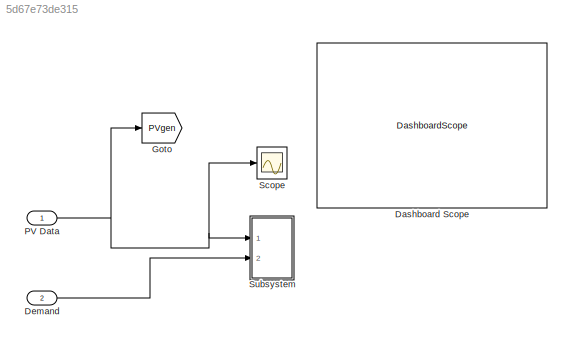
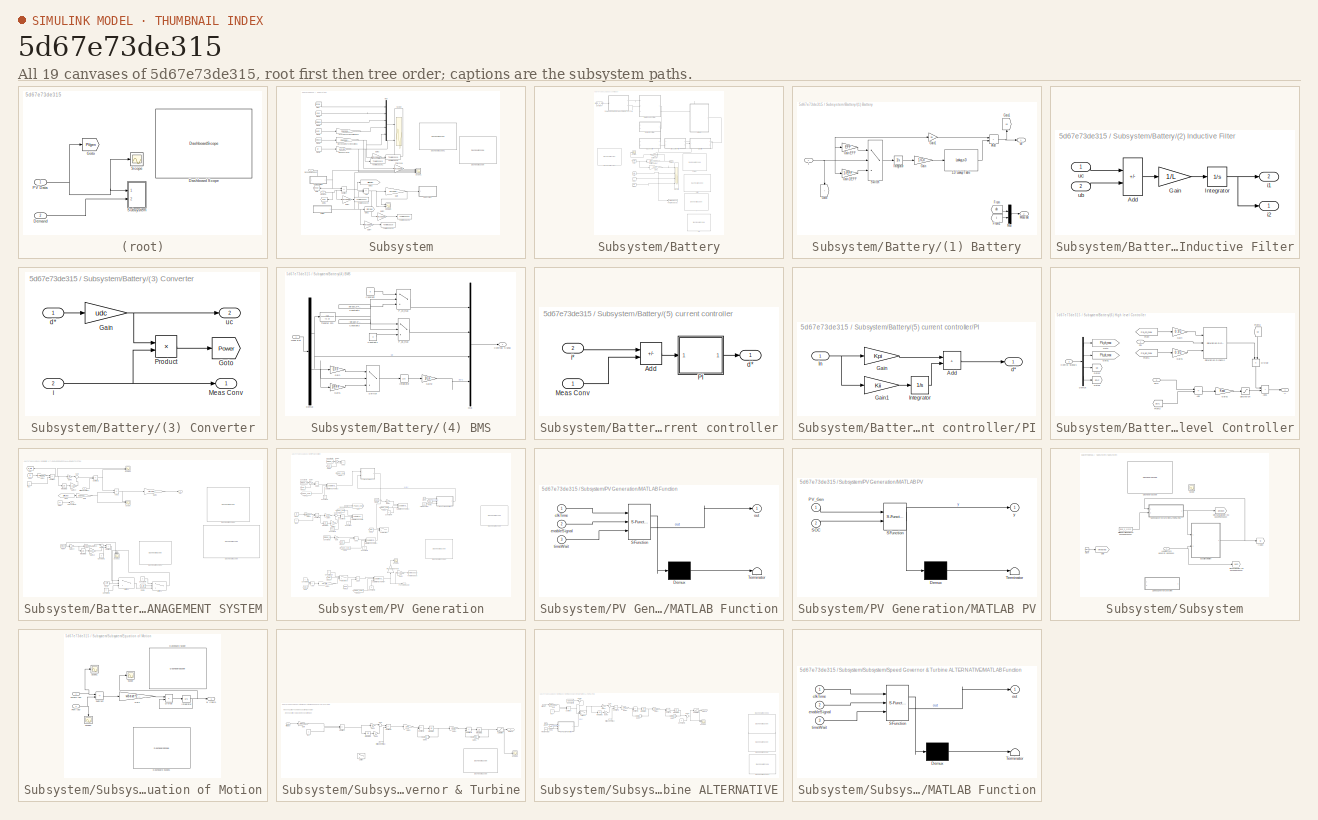
[diagram: thumbnail index - all 19 canvases of the model, root first then tree order]
MODEL slx_5d67e73de315
KIND model
CONFIG AbsTol = auto
CONFIG EnableMultiTasking = off
CONFIG FixedStep = auto
CONFIG MaxStep = 0.01
CONFIG MinStep = auto
CONFIG RelTol = 1e-3
CONFIG SampleTimeConstraint = Unconstrained
CONFIG SolverName = ode23
CONFIG StartTime = 60000
CONFIG StopTime = 70000
BLOCK [DashboardScope] Dashboard Scope
BLOCK [Inport] Demand
  Port = 2
BLOCK [Goto] Goto
  GotoTag = PVgen
  TagVisibility = global
BLOCK [Inport] PV Data
BLOCK [Scope] Scope
  Floating = off
  NumInputPorts = 1
  Ports = [1]
  ScopeSpecificationString = Simulink.scopes.TimeScopeBlockCfg('CurrentConfiguration', extmgr.ConfigurationSet(extmgr.Configuration('Core','General UI',true),extmgr.Configuration('Core','Source UI',true),extmgr.Configuration('Sources','WiredSimulink',true),extmgr.Configuration('Visuals','Time Domain',true),extmgr.Configuration('Tools','Plot Navigation',true),extmgr.Configuration('Tools','Measurements',true)),'Version','2021a'...<+1ch>
BLOCK [SubSystem] Subsystem
  Ports = [2]
  RequestExecContextInheritance = off
BLOCK [Sum] Subsystem/Add
  IconShape = rectangular
  Inputs = +-
  Ports = [2, 1]
BLOCK [SubSystem] Subsystem/Battery
  Ports = [0, 1]
  RequestExecContextInheritance = off
BLOCK [DashboardScope] Subsystem/Battery/ SOC
BLOCK [SubSystem] Subsystem/Battery/(1) Battery
  PortSchema = {"entries":[{"content":{"sides":[{"content":{"connectorIds":["In1"]},"type":"ConnectorPlacement.EquallySpacedRectSide","uuid":"e34c45c3-0268-41b7-a456-a7ff7a17db6e"},{"content":{"connectorIds":["Out1"],"side":"RIGHT"},"type":"ConnectorPlacement.EquallySpacedRectSide","uuid":"7704b9d9-7556-456b-9f5a-c4d56f80ae30"},{"content":{"connectorIds":["Out2"],"side":"TOP"},"type":"ConnectorPlacement.EquallyS...<+246ch>
  Ports = [1, 2]
  RequestExecContextInheritance = off
BLOCK [Lookup_n-D] Subsystem/Battery/(1) Battery/1-D Lookup Table
  BreakpointsForDimension1 = SOC_LUT
  InputPortMap = u0
  InternalRulePriority = Speed
  NumberOfTableDimensions = 1
  Ports = [1, 1]
  RndMeth = Simplest
  Table = OCV_LUT
BLOCK [Sum] Subsystem/Battery/(1) Battery/Add
  IconShape = rectangular
  Ports = [2, 1]
BLOCK [From] Subsystem/Battery/(1) Battery/From
  GotoTag = ub
BLOCK [From] Subsystem/Battery/(1) Battery/From1
  GotoTag = i
  TagVisibility = global
BLOCK [Gain] Subsystem/Battery/(1) Battery/Gain
  Gain = 1/Cn
BLOCK [Gain] Subsystem/Battery/(1) Battery/Gain 1//EFF
  Gain = 1/EFF
BLOCK [Gain] Subsystem/Battery/(1) Battery/Gain EFF
  Gain = EFF
BLOCK [Gain] Subsystem/Battery/(1) Battery/Gain1
  Gain = Rb
BLOCK [Goto] Subsystem/Battery/(1) Battery/Goto
  GotoTag = i
  NameLocation = left
  TagVisibility = global
BLOCK [Goto] Subsystem/Battery/(1) Battery/Goto1
  GotoTag = ub
  NameLocation = right
BLOCK [Integrator] Subsystem/Battery/(1) Battery/Integrator
  InitialCondition = SOC_0*Cn
  Ports = [1, 1]
BLOCK [Outport] Subsystem/Battery/(1) Battery/Meas bat
  Port = 2
BLOCK [Mux] Subsystem/Battery/(1) Battery/Mux
  DisplayOption = bar
  Inputs = 2
  Ports = [2, 1]
BLOCK [Switch] Subsystem/Battery/(1) Battery/Switch
  Criteria = u2 > Threshold
  InputSameDT = off
  SaturateOnIntegerOverflow = off
BLOCK [Inport] Subsystem/Battery/(1) Battery/i
BLOCK [Outport] Subsystem/Battery/(1) Battery/ub
BLOCK [SubSystem] Subsystem/Battery/(2) Inductive Filter
  PortSchema = {"entries":[{"content":{"sides":[{"content":{"connectorIds":["Out2"]},"type":"ConnectorPlacement.EquallySpacedRectSide","uuid":"c9490074-2b7b-4447-a33c-a9379d322631"},{"content":{"connectorIds":["Out1"],"side":"RIGHT"},"type":"ConnectorPlacement.EquallySpacedRectSide","uuid":"2ec79e2c-d8dd-4257-943e-016b77f5a984"},{"content":{"connectorIds":[],"side":"TOP"},"type":"ConnectorPlacement.EquallySpaced...<+396ch>
  Ports = [2, 2]
  RequestExecContextInheritance = off
BLOCK [Sum] Subsystem/Battery/(2) Inductive Filter/Add
  IconShape = rectangular
  Inputs = +-
  Ports = [2, 1]
BLOCK [Gain] Subsystem/Battery/(2) Inductive Filter/Gain
  Gain = 1/L
BLOCK [Integrator] Subsystem/Battery/(2) Inductive Filter/Integrator
  Ports = [1, 1]
BLOCK [Outport] Subsystem/Battery/(2) Inductive Filter/i1
  Port = 2
BLOCK [Outport] Subsystem/Battery/(2) Inductive Filter/i2
BLOCK [Inport] Subsystem/Battery/(2) Inductive Filter/ub
  Port = 2
BLOCK [Inport] Subsystem/Battery/(2) Inductive Filter/uc
BLOCK [SubSystem] Subsystem/Battery/(3) Converter
  PortSchema = {"entries":[{"content":{"sides":[{"content":{"connectorIds":["Out2"]},"type":"ConnectorPlacement.EquallySpacedRectSide","uuid":"c9490074-2b7b-4447-a33c-a9379d322631"},{"content":{"connectorIds":["In2"],"side":"RIGHT"},"type":"ConnectorPlacement.EquallySpacedRectSide","uuid":"2ec79e2c-d8dd-4257-943e-016b77f5a984"},{"content":{"connectorIds":["In1","Out1"],"side":"TOP"},"type":"ConnectorPlacement.Eq...<+252ch>
  Ports = [2, 2]
  RequestExecContextInheritance = off
BLOCK [Gain] Subsystem/Battery/(3) Converter/Gain
  Gain = udc
BLOCK [Goto] Subsystem/Battery/(3) Converter/Goto
  GotoTag = Power
  TagVisibility = global
BLOCK [Outport] Subsystem/Battery/(3) Converter/Meas Conv
BLOCK [Product] Subsystem/Battery/(3) Converter/Product
  Ports = [2, 1]
BLOCK [Inport] Subsystem/Battery/(3) Converter/d*
BLOCK [Inport] Subsystem/Battery/(3) Converter/i
  Port = 2
BLOCK [Outport] Subsystem/Battery/(3) Converter/uc
  Port = 2
BLOCK [SubSystem] Subsystem/Battery/(4) BMS
  PortSchema = {"entries":[{"content":{"sides":[{"content":{"connectorIds":["Out1"]},"type":"ConnectorPlacement.EquallySpacedRectSide","uuid":"7ad5997f-ae27-4a98-8ab9-418effdbae5c"},{"content":{"connectorIds":["In1"],"side":"RIGHT"},"type":"ConnectorPlacement.EquallySpacedRectSide","uuid":"c56e7a01-525e-484f-a434-88ecf8a546e8"},{"content":{"connectorIds":[],"side":"TOP"},"type":"ConnectorPlacement.EquallySpacedR...<+384ch>
  Ports = [1, 1]
  RequestExecContextInheritance = off
BLOCK [Constant] Subsystem/Battery/(4) BMS/Constant
  Value = 0
BLOCK [Constant] Subsystem/Battery/(4) BMS/Constant1
  Value = 0
BLOCK [Constant] Subsystem/Battery/(4) BMS/Constant2
  Value = storage_p*Psysbase*1e6
BLOCK [Constant] Subsystem/Battery/(4) BMS/Constant3
  Value = -storage_p*Psysbase*1e6
BLOCK [Outport] Subsystem/Battery/(4) BMS/Controal Signal
BLOCK [Demux] Subsystem/Battery/(4) BMS/Demux
  Outputs = 2
  Ports = [1, 2]
BLOCK [Gain] Subsystem/Battery/(4) BMS/Gain
  Gain = EFF
BLOCK [Gain] Subsystem/Battery/(4) BMS/Gain1
  Gain = 1/EFF
BLOCK [Gain] Subsystem/Battery/(4) BMS/Gain2
  Gain = 1/Cn
BLOCK [Integrator] Subsystem/Battery/(4) BMS/Integrator
  InitialCondition = SOC_0*Cn
  Ports = [1, 1]
BLOCK [Inport] Subsystem/Battery/(4) BMS/Meas Bat
BLOCK [Mux] Subsystem/Battery/(4) BMS/Mux
  DisplayOption = bar
  Ports = [4, 1]
BLOCK [Switch] Subsystem/Battery/(4) BMS/P_ch_max
  InputSameDT = off
  SaturateOnIntegerOverflow = off
  Threshold = Ub_exp
  ZeroCross = off
BLOCK [Switch] Subsystem/Battery/(4) BMS/P_dc_max
  InputSameDT = off
  SaturateOnIntegerOverflow = off
  Threshold = Ub_min
  ZeroCross = off
BLOCK [Switch] Subsystem/Battery/(4) BMS/Switch
  Criteria = u2 > Threshold
  InputSameDT = off
  SaturateOnIntegerOverflow = off
BLOCK [TransferFcn] Subsystem/Battery/(4) BMS/Transfer Fcn
  Denominator = [1 1]
BLOCK [SubSystem] Subsystem/Battery/(5) current controller
  PortSchema = {"entries":[{"content":{"sides":[{"content":{"connectorIds":[]},"type":"ConnectorPlacement.EquallySpacedRectSide","uuid":"2d354075-c17d-4344-a815-85536605997e"},{"content":{"connectorIds":["In2"],"side":"RIGHT"},"type":"ConnectorPlacement.EquallySpacedRectSide","uuid":"9e91ce6a-f1ef-4336-bc5a-278a409c018d"},{"content":{"connectorIds":[],"side":"TOP"},"type":"ConnectorPlacement.EquallySpacedRectSid...<+390ch>
  Ports = [2, 1]
  RequestExecContextInheritance = off
BLOCK [Sum] Subsystem/Battery/(5) current controller/Add
  IconShape = rectangular
  Inputs = +-
  Ports = [2, 1]
BLOCK [Inport] Subsystem/Battery/(5) current controller/Meas Conv
BLOCK [SubSystem] Subsystem/Battery/(5) current controller/PI
  Ports = [1, 1]
  RequestExecContextInheritance = off
BLOCK [Sum] Subsystem/Battery/(5) current controller/PI/Add
  IconShape = rectangular
  Ports = [2, 1]
BLOCK [Gain] Subsystem/Battery/(5) current controller/PI/Gain
  Gain = Kpi
BLOCK [Gain] Subsystem/Battery/(5) current controller/PI/Gain1
  Gain = Kii
BLOCK [Integrator] Subsystem/Battery/(5) current controller/PI/Integrator
  InitialCondition = OCV_0/udc
  Ports = [1, 1]
BLOCK [Outport] Subsystem/Battery/(5) current controller/PI/d*
BLOCK [Inport] Subsystem/Battery/(5) current controller/PI/ln
BLOCK [Outport] Subsystem/Battery/(5) current controller/d*
BLOCK [Inport] Subsystem/Battery/(5) current controller/i*
  Port = 2
BLOCK [SubSystem] Subsystem/Battery/(6) High level Controller
  PortSchema = {"entries":[{"content":{"sides":[{"content":{"connectorIds":["In1","In2"]},"type":"ConnectorPlacement.EquallySpacedRectSide","uuid":"f1980330-cce1-4eae-bd21-bb2edf6a6354"},{"content":{"connectorIds":["In3","Out1"],"side":"RIGHT"},"type":"ConnectorPlacement.EquallySpacedRectSide","uuid":"5b150bd5-b030-427f-a8ee-89c6d0847365"},{"content":{"connectorIds":[],"side":"TOP"},"type":"ConnectorPlacement.Eq...<+252ch>
  Ports = [3, 1]
  RequestExecContextInheritance = off
BLOCK [Sum] Subsystem/Battery/(6) High level Controller/Add
  IconShape = rectangular
  Inputs = +-
  Ports = [2, 1]
BLOCK [Sum] Subsystem/Battery/(6) High level Controller/Add1
  IconShape = rectangular
  Ports = [2, 1]
BLOCK [Inport] Subsystem/Battery/(6) High level Controller/Control Signals
  Port = 3
BLOCK [Demux] Subsystem/Battery/(6) High level Controller/Demux
  Ports = [1, 4]
BLOCK [Product] Subsystem/Battery/(6) High level Controller/Divide
  Inputs = */
  NameLocation = left
  Ports = [2, 1]
BLOCK [From] Subsystem/Battery/(6) High level Controller/From
  GotoTag = Pb_ch_max
  TagVisibility = global
BLOCK [From] Subsystem/Battery/(6) High level Controller/From1
  GotoTag = Pb_dc_max
  TagVisibility = global
BLOCK [From] Subsystem/Battery/(6) High level Controller/From2
  GotoTag = SOC
  TagVisibility = global
BLOCK [From] Subsystem/Battery/(6) High level Controller/From3
  GotoTag = ub
  NameLocation = left
  TagVisibility = global
BLOCK [Gain] Subsystem/Battery/(6) High level Controller/Gain
  Gain = 0.95
BLOCK [Gain] Subsystem/Battery/(6) High level Controller/Gain1
  Gain = 0.95
BLOCK [Gain] Subsystem/Battery/(6) High level Controller/Gain2
  Gain = Ksoc
BLOCK [Goto] Subsystem/Battery/(6) High level Controller/Goto
  GotoTag = Pb_ch_max
  TagVisibility = global
BLOCK [Goto] Subsystem/Battery/(6) High level Controller/Goto1
  GotoTag = Pb_dc_max
  TagVisibility = global
BLOCK [Goto] Subsystem/Battery/(6) High level Controller/Goto2
  GotoTag = ub
  TagVisibility = global
BLOCK [Goto] Subsystem/Battery/(6) High level Controller/Goto3
  GotoTag = SOC
  TagVisibility = global
BLOCK [Inport] Subsystem/Battery/(6) High level Controller/Pb*
BLOCK [Inport] Subsystem/Battery/(6) High level Controller/SOC
  Port = 2
BLOCK [Saturate] Subsystem/Battery/(6) High level Controller/Saturation
BLOCK [Reference] Subsystem/Battery/(6) High level Controller/Saturation Dynamic  REF=simulink/Discontinuities/Saturation
Dynamic
  Ports = [3, 1]
  SourceBlock = simulink/Discontinuities/Saturation\nDynamic
  SourceProductBaseCode = SL
  SourceType = Saturation Dynamic
BLOCK [Outport] Subsystem/Battery/(6) High level Controller/i*
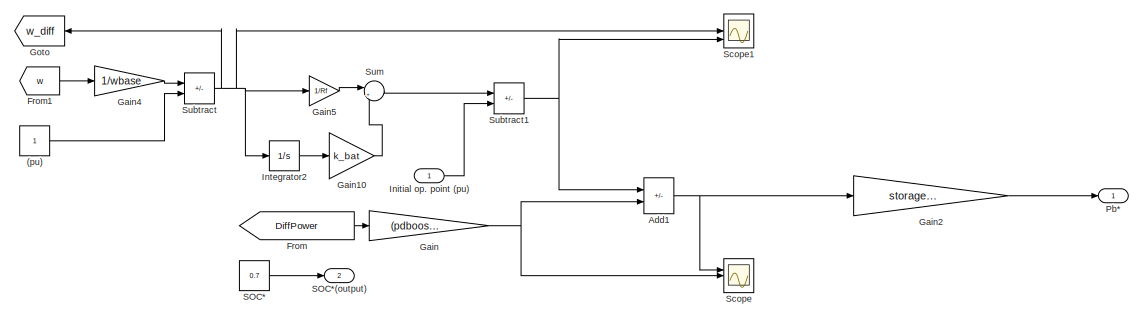
[diagram: Subsystem/Battery/(7) END USER ENERGY MANAGEMENT SYSTEM - part 1/2, top center region]
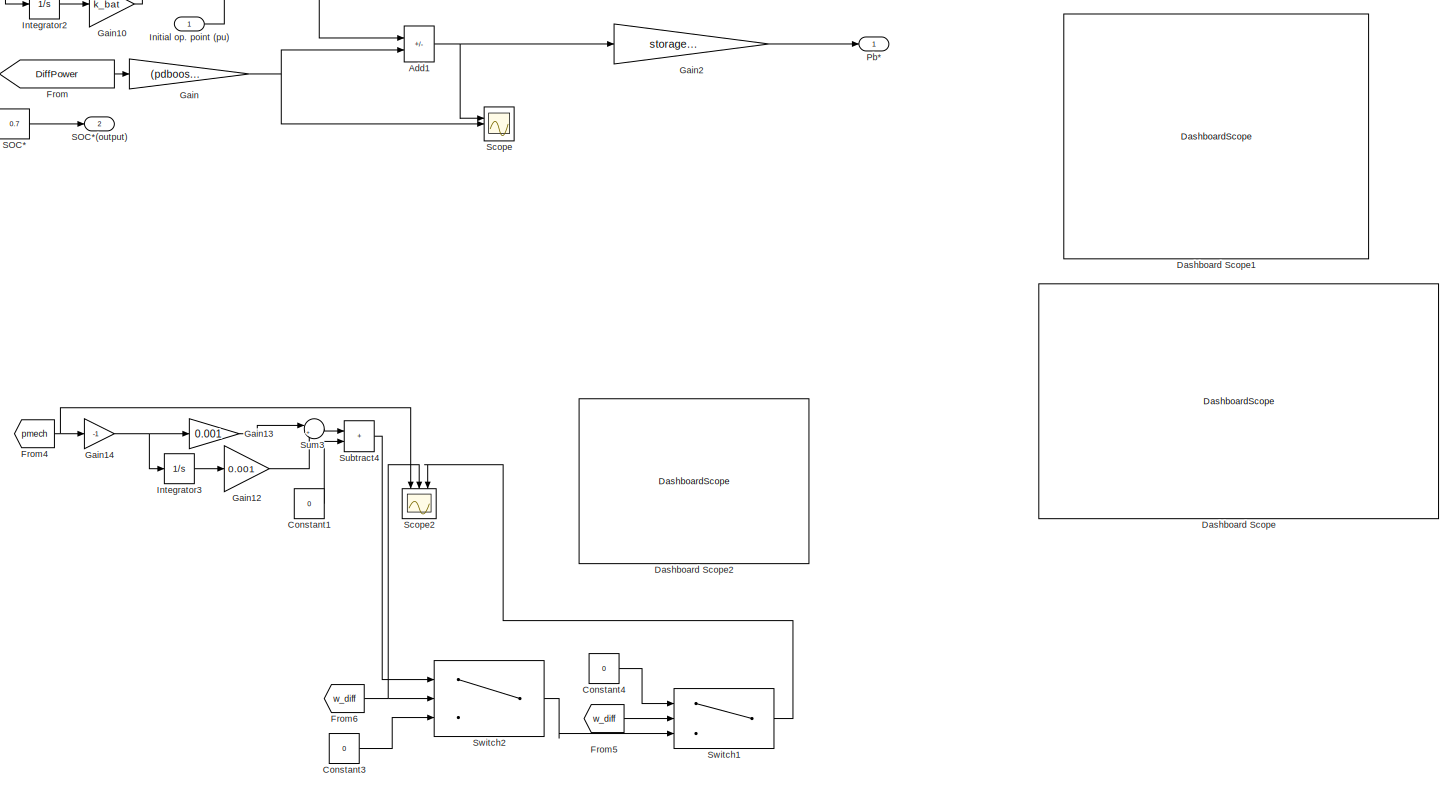
[diagram: Subsystem/Battery/(7) END USER ENERGY MANAGEMENT SYSTEM - part 2/2, most of the canvas]
BLOCK [SubSystem] Subsystem/Battery/(7) END USER ENERGY MANAGEMENT SYSTEM
  Ports = [1, 2]
  RequestExecContextInheritance = off
BLOCK [Constant] Subsystem/Battery/(7) END USER ENERGY MANAGEMENT SYSTEM/(pu)
BLOCK [Sum] Subsystem/Battery/(7) END USER ENERGY MANAGEMENT SYSTEM/Add1
  IconShape = rectangular
  Inputs = --
  Ports = [2, 1]
BLOCK [Constant] Subsystem/Battery/(7) END USER ENERGY MANAGEMENT SYSTEM/Constant1
  Value = 0
BLOCK [Constant] Subsystem/Battery/(7) END USER ENERGY MANAGEMENT SYSTEM/Constant3
  Value = 0
BLOCK [Constant] Subsystem/Battery/(7) END USER ENERGY MANAGEMENT SYSTEM/Constant4
  Value = 0
BLOCK [DashboardScope] Subsystem/Battery/(7) END USER ENERGY MANAGEMENT SYSTEM/Dashboard Scope
BLOCK [DashboardScope] Subsystem/Battery/(7) END USER ENERGY MANAGEMENT SYSTEM/Dashboard Scope1
BLOCK [DashboardScope] Subsystem/Battery/(7) END USER ENERGY MANAGEMENT SYSTEM/Dashboard Scope2
BLOCK [From] Subsystem/Battery/(7) END USER ENERGY MANAGEMENT SYSTEM/From
  GotoTag = DiffPower
  TagVisibility = global
BLOCK [From] Subsystem/Battery/(7) END USER ENERGY MANAGEMENT SYSTEM/From1
  GotoTag = w
  TagVisibility = global
BLOCK [From] Subsystem/Battery/(7) END USER ENERGY MANAGEMENT SYSTEM/From4
  GotoTag = pmech
  TagVisibility = global
BLOCK [From] Subsystem/Battery/(7) END USER ENERGY MANAGEMENT SYSTEM/From5
  GotoTag = w_diff
BLOCK [From] Subsystem/Battery/(7) END USER ENERGY MANAGEMENT SYSTEM/From6
  GotoTag = w_diff
BLOCK [Gain] Subsystem/Battery/(7) END USER ENERGY MANAGEMENT SYSTEM/Gain
  Gain = (pdboost)
BLOCK [Gain] Subsystem/Battery/(7) END USER ENERGY MANAGEMENT SYSTEM/Gain10
  Gain = k_bat
BLOCK [Gain] Subsystem/Battery/(7) END USER ENERGY MANAGEMENT SYSTEM/Gain12
  Gain = 0.001
BLOCK [Gain] Subsystem/Battery/(7) END USER ENERGY MANAGEMENT SYSTEM/Gain13
  Gain = 0.001
BLOCK [Gain] Subsystem/Battery/(7) END USER ENERGY MANAGEMENT SYSTEM/Gain14
  Gain = -1
BLOCK [Gain] Subsystem/Battery/(7) END USER ENERGY MANAGEMENT SYSTEM/Gain2
  Gain = storage_p*Psysbase*1e6
BLOCK [Gain] Subsystem/Battery/(7) END USER ENERGY MANAGEMENT SYSTEM/Gain4
  Gain = 1/wbase
BLOCK [Gain] Subsystem/Battery/(7) END USER ENERGY MANAGEMENT SYSTEM/Gain5
  Gain = 1/Rf
BLOCK [Goto] Subsystem/Battery/(7) END USER ENERGY MANAGEMENT SYSTEM/Goto
  GotoTag = w_diff
  NameLocation = top
BLOCK [Inport] Subsystem/Battery/(7) END USER ENERGY MANAGEMENT SYSTEM/Initial op. point (pu)
BLOCK [Integrator] Subsystem/Battery/(7) END USER ENERGY MANAGEMENT SYSTEM/Integrator2
  Ports = [1, 1]
BLOCK [Integrator] Subsystem/Battery/(7) END USER ENERGY MANAGEMENT SYSTEM/Integrator3
  Ports = [1, 1]
BLOCK [Outport] Subsystem/Battery/(7) END USER ENERGY MANAGEMENT SYSTEM/Pb*
BLOCK [Constant] Subsystem/Battery/(7) END USER ENERGY MANAGEMENT SYSTEM/SOC*
  Value = 0.7
BLOCK [Outport] Subsystem/Battery/(7) END USER ENERGY MANAGEMENT SYSTEM/SOC*(output)
  Port = 2
BLOCK [Scope] Subsystem/Battery/(7) END USER ENERGY MANAGEMENT SYSTEM/Scope
  Floating = off
  NumInputPorts = 5
  Ports = [5]
  ScopeSpecificationString = Simulink.scopes.TimeScopeBlockCfg('CurrentConfiguration', extmgr.ConfigurationSet(extmgr.Configuration('Core','General UI',true),extmgr.Configuration('Core','Source UI',true),extmgr.Configuration('Sources','WiredSimulink',true,'DataLoggingVariableName','ScopeData1'),extmgr.Configuration('Visuals','Time Domain',true,'SerializedDisplays',{struct('MinYLimReal','-0.42036','MaxYLimReal','0.54034','YLab...<+1406ch>
BLOCK [Scope] Subsystem/Battery/(7) END USER ENERGY MANAGEMENT SYSTEM/Scope1
  Floating = off
  NumInputPorts = 3
  Ports = [3]
  ScopeSpecificationString = Simulink.scopes.TimeScopeBlockCfg('CurrentConfiguration', extmgr.ConfigurationSet(extmgr.Configuration('Core','General UI',true),extmgr.Configuration('Core','Source UI',true),extmgr.Configuration('Sources','WiredSimulink',true,'DataLoggingVariableName','ScopeData1'),extmgr.Configuration('Visuals','Time Domain',true),extmgr.Configuration('Tools','Plot Navigation',true),extmgr.Configuration('Tools',...<+40ch>  <repeated x5 — deduplicated; at blocks: Scope1, Scope2, Scope>
BLOCK [Scope] Subsystem/Battery/(7) END USER ENERGY MANAGEMENT SYSTEM/Scope2
  Floating = off
  NameLocation = left
  NumInputPorts = 3
  Ports = [3]
BLOCK [Sum] Subsystem/Battery/(7) END USER ENERGY MANAGEMENT SYSTEM/Subtract
  IconShape = rectangular
  Inputs = +-
  Ports = [2, 1]
BLOCK [Sum] Subsystem/Battery/(7) END USER ENERGY MANAGEMENT SYSTEM/Subtract1
  IconShape = rectangular
  Inputs = -+
  Ports = [2, 1]
BLOCK [Sum] Subsystem/Battery/(7) END USER ENERGY MANAGEMENT SYSTEM/Subtract4
  IconShape = rectangular
  Ports = [2, 1]
BLOCK [Sum] Subsystem/Battery/(7) END USER ENERGY MANAGEMENT SYSTEM/Sum
  Inputs = |++
  Ports = [2, 1]
BLOCK [Sum] Subsystem/Battery/(7) END USER ENERGY MANAGEMENT SYSTEM/Sum3
  Inputs = |++
  Ports = [2, 1]
BLOCK [Switch] Subsystem/Battery/(7) END USER ENERGY MANAGEMENT SYSTEM/Switch1
  Criteria = u2 > Threshold
  InputSameDT = off
  SaturateOnIntegerOverflow = off
  Threshold = 0.005
BLOCK [Switch] Subsystem/Battery/(7) END USER ENERGY MANAGEMENT SYSTEM/Switch2
  Criteria = u2 > Threshold
  InputSameDT = off
  SaturateOnIntegerOverflow = off
  Threshold = -0.005
BLOCK [Gain] Subsystem/Battery/Battery KW
  Gain = Psysbase
BLOCK [Gain] Subsystem/Battery/Battery output
  Gain = -1/(Psysbase*1e6)
BLOCK [Constant] Subsystem/Battery/Constant
  Value = load_0_bat
BLOCK [DashboardScope] Subsystem/Battery/Dashboard Scope
BLOCK [From] Subsystem/Battery/From
  GotoTag = Power
  TagVisibility = global
BLOCK [From] Subsystem/Battery/From2
  GotoTag = i
  TagVisibility = global
BLOCK [From] Subsystem/Battery/From3
  GotoTag = ub
  TagVisibility = global
BLOCK [Gain] Subsystem/Battery/Gain1
  Gain = 1/1e6
BLOCK [DashboardScope] Subsystem/Battery/Power
BLOCK [Scope] Subsystem/Battery/Results
  Floating = off
  NumInputPorts = 4
  Ports = [4]
  ScopeSpecificationString = Simulink.scopes.TimeScopeBlockCfg('CurrentConfiguration', extmgr.ConfigurationSet(extmgr.Configuration('Core','General UI',true),extmgr.Configuration('Core','Source UI',true),extmgr.Configuration('Sources','WiredSimulink',true,'DataLoggingVariableName','Battery_results','DataLogging',true),extmgr.Configuration('Visuals','Time Domain',true,'SerializedDisplays',{struct('MinYLimReal','-719.63647','Ma...<+1426ch>
BLOCK [From] Subsystem/Battery/SOC
  GotoTag = SOC
  TagVisibility = global
BLOCK [Scope] Subsystem/Battery/Scope
  Floating = off
  NumInputPorts = 1
  Ports = [1]
BLOCK [Outport] Subsystem/Battery/Storage
BLOCK [ToWorkspace] Subsystem/Battery/To Workspace1
  FixptAsFi = on
  MaxDataPoints = inf
  Ports = [1]
  SampleTime = -1
  Save2DSignal = 2-D array (concatenate along first dimension)
  SaveFormat = Timeseries
  VariableName = SOC
BLOCK [DashboardScope] Subsystem/Battery/i
BLOCK [DashboardScope] Subsystem/Battery/ub
BLOCK [DashboardScope] Subsystem/Dashboard Scope
BLOCK [DashboardScope] Subsystem/Dashboard Scope1
BLOCK [Inport] Subsystem/Demand
  Port = 2
BLOCK [Gain] Subsystem/Frequency in Hz
  Gain = 1/(2*pi)
BLOCK [From] Subsystem/From
  GotoTag = renew
BLOCK [From] Subsystem/From1
  GotoTag = load
  TagVisibility = global
BLOCK [From] Subsystem/From2
  GotoTag = storage
BLOCK [From] Subsystem/From3
  GotoTag = pem
  TagVisibility = global
BLOCK [From] Subsystem/From4
  GotoTag = pmech
  TagVisibility = global
BLOCK [From] Subsystem/From5
  GotoTag = w
  TagVisibility = global
BLOCK [Gain] Subsystem/Gain
  Gain = Psysbase/Pgenbase
BLOCK [Gain] Subsystem/Gain1
  Gain = Psysbase
BLOCK [Gain] Subsystem/Gain2
  Gain = Psysbase
BLOCK [Gain] Subsystem/Gain3
  Gain = Psysbase
BLOCK [Gain] Subsystem/Gain4
  Gain = Psysbase
BLOCK [Goto] Subsystem/Goto
  GotoTag = renew
BLOCK [Goto] Subsystem/Goto1
  GotoTag = load
  TagVisibility = global
BLOCK [Goto] Subsystem/Goto2
  GotoTag = storage
  NameLocation = top
BLOCK [Goto] Subsystem/Goto3
  GotoTag = DiffPower
  TagVisibility = global
BLOCK [Gain] Subsystem/Mech power Synchronour in pu
  Gain = Pgenbase/Psysbase
BLOCK [Mux] Subsystem/Mux
  DisplayOption = bar
  Inputs = 5
  Ports = [5, 1]
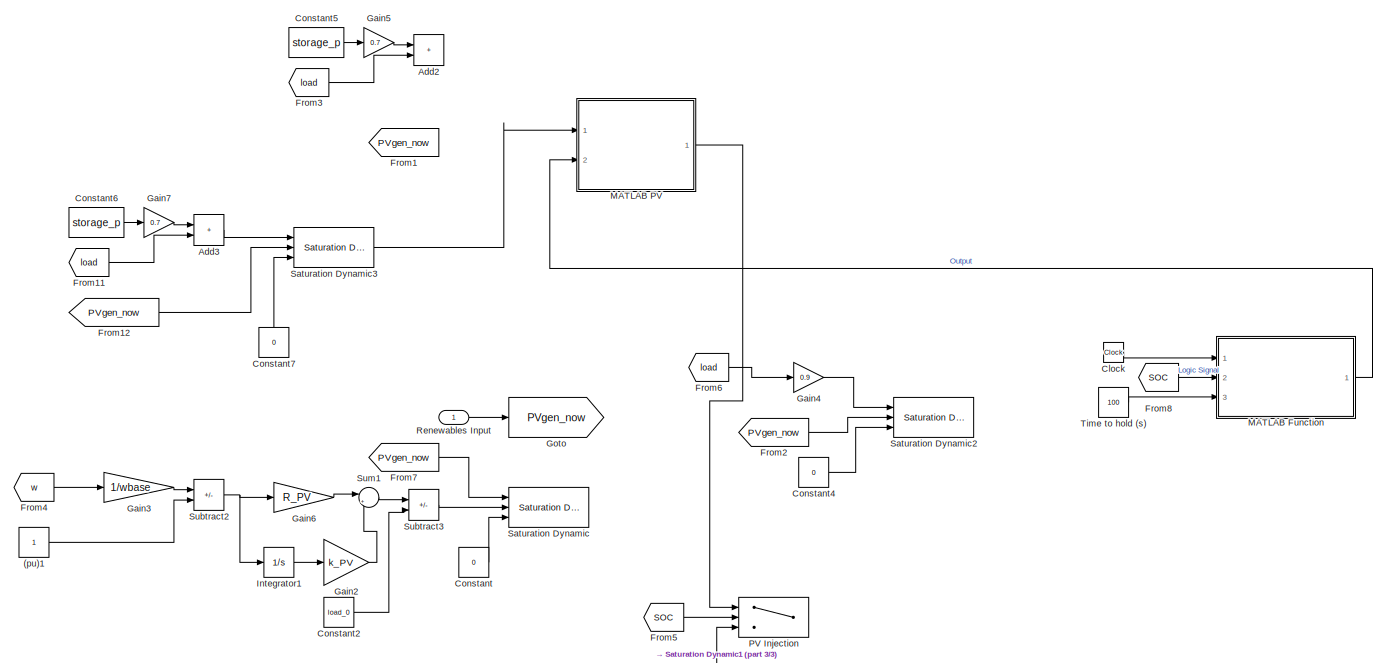
[diagram: Subsystem/PV Generation - part 1/3, full width, top band]
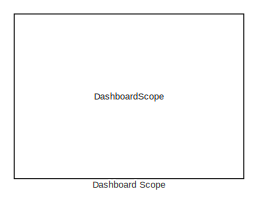
[diagram: Subsystem/PV Generation - part 2/3, middle right region]
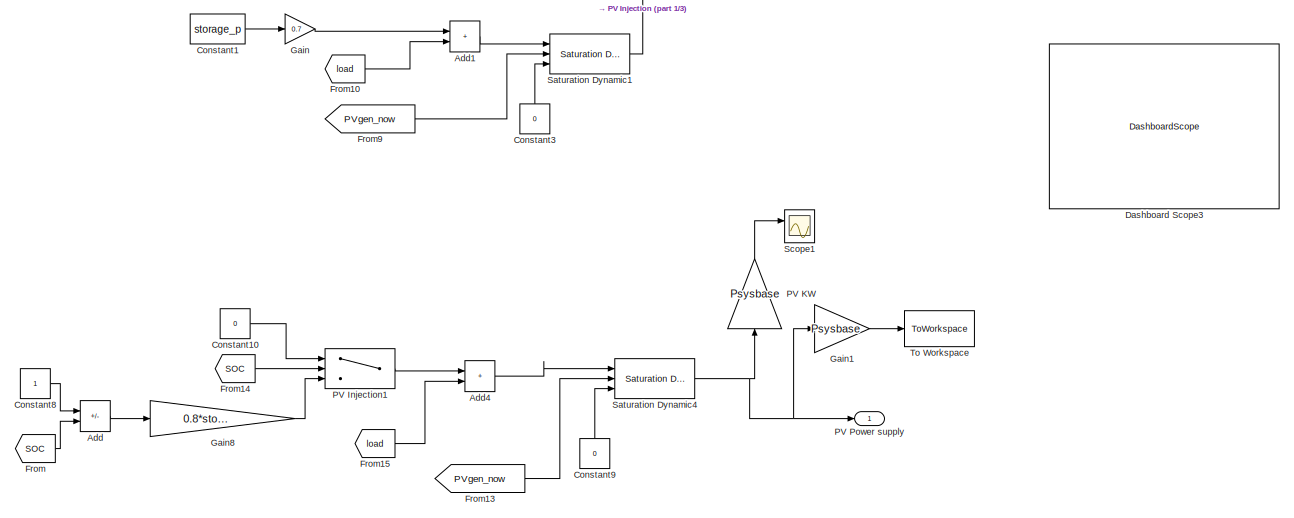
[diagram: Subsystem/PV Generation - part 3/3, bottom center region]
BLOCK [SubSystem] Subsystem/PV Generation
  PortSchema = {"entries":[{"content":{"sides":[{"content":{"connectorIds":[]},"type":"ConnectorPlacement.EquallySpacedRectSide","uuid":"0eea5417-339e-48e3-be8a-7ac1e3b13c5e"},{"content":{"connectorIds":["Out1"],"side":"RIGHT"},"type":"ConnectorPlacement.EquallySpacedRectSide","uuid":"a12bbc12-1de9-45f8-93a0-544242284c74"},{"content":{"connectorIds":["In1"],"side":"TOP"},"type":"ConnectorPlacement.EquallySpacedR...<+240ch>
  Ports = [1, 1]
  RequestExecContextInheritance = off
BLOCK [Constant] Subsystem/PV Generation/(pu)1
BLOCK [Sum] Subsystem/PV Generation/Add
  IconShape = rectangular
  Inputs = +-
  Ports = [2, 1]
BLOCK [Sum] Subsystem/PV Generation/Add1
  IconShape = rectangular
  Ports = [2, 1]
BLOCK [Sum] Subsystem/PV Generation/Add2
  IconShape = rectangular
  Ports = [2, 1]
BLOCK [Sum] Subsystem/PV Generation/Add3
  IconShape = rectangular
  Ports = [2, 1]
BLOCK [Sum] Subsystem/PV Generation/Add4
  IconShape = rectangular
  Ports = [2, 1]
BLOCK [Clock] Subsystem/PV Generation/Clock
BLOCK [Constant] Subsystem/PV Generation/Constant
  Value = 0
BLOCK [Constant] Subsystem/PV Generation/Constant1
  Value = storage_p
BLOCK [Constant] Subsystem/PV Generation/Constant10
  Value = 0
BLOCK [Constant] Subsystem/PV Generation/Constant2
  Value = load_0
BLOCK [Constant] Subsystem/PV Generation/Constant3
  NameLocation = right
  Value = 0
BLOCK [Constant] Subsystem/PV Generation/Constant4
  Value = 0
BLOCK [Constant] Subsystem/PV Generation/Constant5
  Value = storage_p
BLOCK [Constant] Subsystem/PV Generation/Constant6
  Value = storage_p
BLOCK [Constant] Subsystem/PV Generation/Constant7
  NameLocation = right
  Value = 0
BLOCK [Constant] Subsystem/PV Generation/Constant8
BLOCK [Constant] Subsystem/PV Generation/Constant9
  NameLocation = right
  Value = 0
BLOCK [DashboardScope] Subsystem/PV Generation/Dashboard Scope
BLOCK [DashboardScope] Subsystem/PV Generation/Dashboard Scope3
BLOCK [From] Subsystem/PV Generation/From
  GotoTag = SOC
  TagVisibility = global
BLOCK [From] Subsystem/PV Generation/From1
  GotoTag = PVgen_now
BLOCK [From] Subsystem/PV Generation/From10
  GotoTag = load
  TagVisibility = global
BLOCK [From] Subsystem/PV Generation/From11
  GotoTag = load
  TagVisibility = global
BLOCK [From] Subsystem/PV Generation/From12
  GotoTag = PVgen_now
BLOCK [From] Subsystem/PV Generation/From13
  GotoTag = PVgen_now
BLOCK [From] Subsystem/PV Generation/From14
  GotoTag = SOC
  TagVisibility = global
BLOCK [From] Subsystem/PV Generation/From15
  GotoTag = load
  TagVisibility = global
BLOCK [From] Subsystem/PV Generation/From2
  GotoTag = PVgen_now
BLOCK [From] Subsystem/PV Generation/From3
  GotoTag = load
  TagVisibility = global
BLOCK [From] Subsystem/PV Generation/From4
  GotoTag = w
  TagVisibility = global
BLOCK [From] Subsystem/PV Generation/From5
  GotoTag = SOC
  TagVisibility = global
BLOCK [From] Subsystem/PV Generation/From6
  GotoTag = load
  TagVisibility = global
BLOCK [From] Subsystem/PV Generation/From7
  GotoTag = PVgen_now
BLOCK [From] Subsystem/PV Generation/From8
  GotoTag = SOC
  TagVisibility = global
BLOCK [From] Subsystem/PV Generation/From9
  GotoTag = PVgen_now
BLOCK [Gain] Subsystem/PV Generation/Gain
  Gain = 0.7
BLOCK [Gain] Subsystem/PV Generation/Gain1
  Gain = Psysbase
BLOCK [Gain] Subsystem/PV Generation/Gain2
  Gain = k_PV
BLOCK [Gain] Subsystem/PV Generation/Gain3
  Gain = 1/wbase
BLOCK [Gain] Subsystem/PV Generation/Gain4
  Gain = 0.9
BLOCK [Gain] Subsystem/PV Generation/Gain5
  Gain = 0.7
BLOCK [Gain] Subsystem/PV Generation/Gain6
  Gain = R_PV
BLOCK [Gain] Subsystem/PV Generation/Gain7
  Gain = 0.7
BLOCK [Gain] Subsystem/PV Generation/Gain8
  Gain = 0.8*storage_p
BLOCK [Goto] Subsystem/PV Generation/Goto
  GotoTag = PVgen_now
BLOCK [Integrator] Subsystem/PV Generation/Integrator1
  Ports = [1, 1]
BLOCK [SubSystem] Subsystem/PV Generation/MATLAB Function
  ErrorFcn = Stateflow.Translate.translate
  PermitHierarchicalResolution = ExplicitOnly
  Ports = [3, 1]
  RequestExecContextInheritance = off
  SFBlockType = MATLAB Function
  TreatAsAtomicUnit = on
BLOCK [Demux] Subsystem/PV Generation/MATLAB Function/ Demux 
  Outputs = 1
  Ports = [1, 1]
BLOCK [S-Function] Subsystem/PV Generation/MATLAB Function/ SFunction 
  EnableBusSupport = on
  FunctionName = sf_sfun
  PortCounts = [3 2]
  Ports = [3, 2]
  SFcnIsStateOwnerBlock = off
  SFunctionDeploymentMode = off
  Tag = Stateflow S-Function 1
BLOCK [Terminator] Subsystem/PV Generation/MATLAB Function/ Terminator 
BLOCK [Inport] Subsystem/PV Generation/MATLAB Function/clkTime
BLOCK [Inport] Subsystem/PV Generation/MATLAB Function/enableSignal
  Port = 2
BLOCK [Outport] Subsystem/PV Generation/MATLAB Function/out
BLOCK [Inport] Subsystem/PV Generation/MATLAB Function/timeWait
  Port = 3
BLOCK [SubSystem] Subsystem/PV Generation/MATLAB PV
  ErrorFcn = Stateflow.Translate.translate
  PermitHierarchicalResolution = ExplicitOnly
  Ports = [2, 1]
  RequestExecContextInheritance = off
  SFBlockType = MATLAB Function
  TreatAsAtomicUnit = on
BLOCK [Demux] Subsystem/PV Generation/MATLAB PV/ Demux 
  Outputs = 1
  Ports = [1, 1]
BLOCK [S-Function] Subsystem/PV Generation/MATLAB PV/ SFunction 
  EnableBusSupport = on
  FunctionName = sf_sfun
  PortCounts = [2 2]
  Ports = [2, 2]
  SFcnIsStateOwnerBlock = off
  SFunctionDeploymentMode = off
  Tag = Stateflow S-Function 3
BLOCK [Terminator] Subsystem/PV Generation/MATLAB PV/ Terminator 
BLOCK [Inport] Subsystem/PV Generation/MATLAB PV/PV_Gen
BLOCK [Inport] Subsystem/PV Generation/MATLAB PV/SOC
  Port = 2
BLOCK [Outport] Subsystem/PV Generation/MATLAB PV/y
BLOCK [Switch] Subsystem/PV Generation/PV Injection
  Criteria = u2 > Threshold
  InputSameDT = off
  SaturateOnIntegerOverflow = off
  Threshold = 0.8
BLOCK [Switch] Subsystem/PV Generation/PV Injection1
  Criteria = u2 > Threshold
  InputSameDT = off
  SaturateOnIntegerOverflow = off
  Threshold = 0.98
BLOCK [Gain] Subsystem/PV Generation/PV KW
  Gain = Psysbase
  NameLocation = right
BLOCK [Outport] Subsystem/PV Generation/PV Power supply
BLOCK [Inport] Subsystem/PV Generation/Renewables Input
BLOCK [Reference] Subsystem/PV Generation/Saturation Dynamic  REF=simulink/Discontinuities/Saturation
Dynamic
  Ports = [3, 1]
  SourceBlock = simulink/Discontinuities/Saturation\nDynamic
  SourceProductBaseCode = SL
  SourceType = Saturation Dynamic
BLOCK [Reference] Subsystem/PV Generation/Saturation Dynamic1  REF=simulink/Discontinuities/Saturation
Dynamic
  Ports = [3, 1]
  SourceBlock = simulink/Discontinuities/Saturation\nDynamic
  SourceProductBaseCode = SL
  SourceType = Saturation Dynamic
BLOCK [Reference] Subsystem/PV Generation/Saturation Dynamic2  REF=simulink/Discontinuities/Saturation
Dynamic
  Ports = [3, 1]
  SourceBlock = simulink/Discontinuities/Saturation\nDynamic
  SourceProductBaseCode = SL
  SourceType = Saturation Dynamic
BLOCK [Reference] Subsystem/PV Generation/Saturation Dynamic3  REF=simulink/Discontinuities/Saturation
Dynamic
  Ports = [3, 1]
  SourceBlock = simulink/Discontinuities/Saturation\nDynamic
  SourceProductBaseCode = SL
  SourceType = Saturation Dynamic
BLOCK [Reference] Subsystem/PV Generation/Saturation Dynamic4  REF=simulink/Discontinuities/Saturation
Dynamic
  Ports = [3, 1]
  SourceBlock = simulink/Discontinuities/Saturation\nDynamic
  SourceProductBaseCode = SL
  SourceType = Saturation Dynamic
BLOCK [Scope] Subsystem/PV Generation/Scope1
  Floating = off
  NumInputPorts = 2
  Ports = [2]
  ScopeSpecificationString = Simulink.scopes.TimeScopeBlockCfg('CurrentConfiguration', extmgr.ConfigurationSet(extmgr.Configuration('Core','General UI',true),extmgr.Configuration('Core','Source UI',true),extmgr.Configuration('Sources','WiredSimulink',true,'DataLoggingVariableName','ScopeData3'),extmgr.Configuration('Visuals','Time Domain',true),extmgr.Configuration('Tools','Plot Navigation',true),extmgr.Configuration('Tools',...<+40ch>  <repeated x3 — deduplicated; at blocks: Scope1>
BLOCK [Sum] Subsystem/PV Generation/Subtract2
  IconShape = rectangular
  Inputs = +-
  Ports = [2, 1]
BLOCK [Sum] Subsystem/PV Generation/Subtract3
  IconShape = rectangular
  Inputs = -+
  Ports = [2, 1]
BLOCK [Sum] Subsystem/PV Generation/Sum1
  Inputs = |++
  Ports = [2, 1]
BLOCK [Constant] Subsystem/PV Generation/Time to hold (s)
  Value = 100
BLOCK [ToWorkspace] Subsystem/PV Generation/To Workspace
  FixptAsFi = on
  MaxDataPoints = inf
  Ports = [1]
  SampleTime = -1
  SaveFormat = Timeseries
  VariableName = PV_gen
BLOCK [Gain] Subsystem/Pmech KW
  Gain = Psysbase
BLOCK [Inport] Subsystem/Renewables Input
BLOCK [Scope] Subsystem/Scope
  Floating = off
  NumInputPorts = 2
  Ports = [2]
  ScopeSpecificationString = Simulink.scopes.TimeScopeBlockCfg('CurrentConfiguration', extmgr.ConfigurationSet(extmgr.Configuration('Core','General UI',true),extmgr.Configuration('Core','Source UI',true),extmgr.Configuration('Sources','WiredSimulink',true,'DataLoggingVariableName','results','DataLogging',true,'DataLoggingDecimateData',true,'DataLoggingDecimation','1','DataLoggingSaveFormat','StructureWithTime'),extmgr.Configu...<+1640ch>
BLOCK [Scope] Subsystem/Scope1
  Floating = off
  NumInputPorts = 4
  Ports = [4]
BLOCK [Scope] Subsystem/Scope2
  Floating = off
  NumInputPorts = 2
  Ports = [2]
BLOCK [SubSystem] Subsystem/Subsystem
  Ports = [1]
  RequestExecContextInheritance = off
BLOCK [Goto] Subsystem/Subsystem/(rad//s)
  GotoTag = w
  TagVisibility = global
BLOCK [Clock] Subsystem/Subsystem/Clock
BLOCK [DashboardScope] Subsystem/Subsystem/Dashboard Scope
BLOCK [Goto] Subsystem/Subsystem/Electrical power (pu base: Pgenbase)
  GotoTag = pem
  TagVisibility = global
BLOCK [SubSystem] Subsystem/Subsystem/Equation of Motion
  Ports = [2, 1]
  RequestExecContextInheritance = off
BLOCK [DashboardScope] Subsystem/Subsystem/Equation of Motion/Dashboard Scope
BLOCK [DashboardScope] Subsystem/Subsystem/Equation of Motion/Dashboard Scope1
BLOCK [Product] Subsystem/Subsystem/Equation of Motion/Divide
  Inputs = */
  Ports = [2, 1]
BLOCK [Gain] Subsystem/Subsystem/Equation of Motion/Gain
  Gain = wbase^2/(2*H)
BLOCK [Integrator] Subsystem/Subsystem/Equation of Motion/Integrator
  InitialCondition = wbase
  Ports = [1, 1]
BLOCK [Inport] Subsystem/Subsystem/Equation of Motion/Pem (pu)
  Port = 2
BLOCK [Inport] Subsystem/Subsystem/Equation of Motion/Pmech (pu)
BLOCK [Scope] Subsystem/Subsystem/Equation of Motion/Scope
  Floating = off
  NumInputPorts = 1
  Ports = [1]
  ScopeSpecificationString = Simulink.scopes.TimeScopeBlockCfg('CurrentConfiguration', extmgr.ConfigurationSet(extmgr.Configuration('Core','General UI',true),extmgr.Configuration('Core','Source UI',true),extmgr.Configuration('Sources','WiredSimulink',true,'DataLoggingVariableName','ScopeData4'),extmgr.Configuration('Visuals','Time Domain',true),extmgr.Configuration('Tools','Plot Navigation',true),extmgr.Configuration('Tools',...<+40ch>
BLOCK [Scope] Subsystem/Subsystem/Equation of Motion/Scope1
  Floating = off
  NumInputPorts = 1
  Ports = [1]
  ScopeSpecificationString = Simulink.scopes.TimeScopeBlockCfg('CurrentConfiguration', extmgr.ConfigurationSet(extmgr.Configuration('Core','General UI',true),extmgr.Configuration('Core','Source UI',true),extmgr.Configuration('Sources','WiredSimulink',true,'DataLoggingVariableName','ScopeData5'),extmgr.Configuration('Visuals','Time Domain',true),extmgr.Configuration('Tools','Plot Navigation',true),extmgr.Configuration('Tools',...<+40ch>
BLOCK [Scope] Subsystem/Subsystem/Equation of Motion/Scope2
  Floating = off
  NameLocation = left
  NumInputPorts = 1
  Ports = [1]
  ScopeSpecificationString = Simulink.scopes.TimeScopeBlockCfg('CurrentConfiguration', extmgr.ConfigurationSet(extmgr.Configuration('Core','General UI',true),extmgr.Configuration('Core','Source UI',true),extmgr.Configuration('Sources','WiredSimulink',true,'DataLoggingVariableName','ScopeData6'),extmgr.Configuration('Visuals','Time Domain',true),extmgr.Configuration('Tools','Plot Navigation',true),extmgr.Configuration('Tools',...<+40ch>
BLOCK [Sum] Subsystem/Subsystem/Equation of Motion/Subtract
  IconShape = rectangular
  Inputs = +-
  Ports = [2, 1]
BLOCK [Outport] Subsystem/Subsystem/Equation of Motion/w (rad//s)
BLOCK [Goto] Subsystem/Subsystem/Goto
  GotoTag = timestep
BLOCK [Constant] Subsystem/Subsystem/Initial operating point (pu base: Pgenbase)
  Value = load_0_synch
BLOCK [Inport] Subsystem/Subsystem/Load to synch generator (pu base: Pgenbase)
BLOCK [Goto] Subsystem/Subsystem/Mechanical power (pu base: Pgenbase)
  GotoTag = pmech
  TagVisibility = global
BLOCK [Scope] Subsystem/Subsystem/Scope
  Floating = off
  NumInputPorts = 1
  Ports = [1]
  ScopeSpecificationString = Simulink.scopes.TimeScopeBlockCfg('CurrentConfiguration', extmgr.ConfigurationSet(extmgr.Configuration('Core','General UI',true),extmgr.Configuration('Core','Source UI',true),extmgr.Configuration('Sources','WiredSimulink',true,'DataLoggingVariableName','ScopeData4'),extmgr.Configuration('Visuals','Time Domain',true),extmgr.Configuration('Tools','Plot Navigation',true),extmgr.Configuration('Tools',...<+40ch>
BLOCK [SubSystem] Subsystem/Subsystem/Speed Covernor & Turbine
  Ports = [2, 1]
  RequestExecContextInheritance = off
BLOCK [Constant] Subsystem/Subsystem/Speed Covernor & Turbine/(pu)
BLOCK [DashboardScope] Subsystem/Subsystem/Speed Covernor & Turbine/Dashboard Scope
BLOCK [Gain] Subsystem/Subsystem/Speed Covernor & Turbine/Gain
  Gain = 1/wbase
BLOCK [Gain] Subsystem/Subsystem/Speed Covernor & Turbine/Gain1
  Gain = 1/R
BLOCK [Gain] Subsystem/Subsystem/Speed Covernor & Turbine/Gain2
  Gain = 1/TG
BLOCK [Gain] Subsystem/Subsystem/Speed Covernor & Turbine/Gain3
  Gain = 1/TG
BLOCK [Gain] Subsystem/Subsystem/Speed Covernor & Turbine/Gain4
  Gain = 1/TCH
BLOCK [Gain] Subsystem/Subsystem/Speed Covernor & Turbine/Gain5
  Gain = 1/TCH
BLOCK [Gain] Subsystem/Subsystem/Speed Covernor & Turbine/Gain6
  Gain = k
BLOCK [Inport] Subsystem/Subsystem/Speed Covernor & Turbine/Initial op. point (pu)
  Port = 2
BLOCK [Integrator] Subsystem/Subsystem/Speed Covernor & Turbine/Integrator
  InitialCondition = load_0_synch
  Ports = [1, 1]
BLOCK [Integrator] Subsystem/Subsystem/Speed Covernor & Turbine/Integrator1
  InitialCondition = load_0_synch
  Ports = [1, 1]
BLOCK [Integrator] Subsystem/Subsystem/Speed Covernor & Turbine/Integrator2
  Ports = [1, 1]
BLOCK [Saturate] Subsystem/Subsystem/Speed Covernor & Turbine/Saturation
  LowerLimit = 0
  UpperLimit = diesel_cap_pu
BLOCK [Scope] Subsystem/Subsystem/Speed Covernor & Turbine/Scope1
  Floating = off
  NumInputPorts = 1
  Ports = [1]
BLOCK [Sum] Subsystem/Subsystem/Speed Covernor & Turbine/Subtract
  IconShape = rectangular
  Inputs = +-
  Ports = [2, 1]
BLOCK [Sum] Subsystem/Subsystem/Speed Covernor & Turbine/Subtract1
  IconShape = rectangular
  Inputs = -+
  Ports = [2, 1]
BLOCK [Sum] Subsystem/Subsystem/Speed Covernor & Turbine/Subtract2
  IconShape = rectangular
  Inputs = +-
  Ports = [2, 1]
BLOCK [Sum] Subsystem/Subsystem/Speed Covernor & Turbine/Subtract3
  IconShape = rectangular
  Inputs = +-
  Ports = [2, 1]
BLOCK [Sum] Subsystem/Subsystem/Speed Covernor & Turbine/Sum
  Inputs = |++
  Ports = [2, 1]
BLOCK [Switch] Subsystem/Subsystem/Speed Covernor & Turbine/Switch
  Criteria = u2 > Threshold
  InputSameDT = off
  SaturateOnIntegerOverflow = off
BLOCK [Outport] Subsystem/Subsystem/Speed Covernor & Turbine/pmech
BLOCK [Inport] Subsystem/Subsystem/Speed Covernor & Turbine/w (rad//s)
BLOCK [SubSystem] Subsystem/Subsystem/Speed Governor & Turbine ALTERNATIVE
  Ports = [2, 1]
  RequestExecContextInheritance = off
BLOCK [Constant] Subsystem/Subsystem/Speed Governor & Turbine ALTERNATIVE/(pu)
BLOCK [Clock] Subsystem/Subsystem/Speed Governor & Turbine ALTERNATIVE/Clock
BLOCK [Constant] Subsystem/Subsystem/Speed Governor & Turbine ALTERNATIVE/Constant4
  Value = 0
BLOCK [Constant] Subsystem/Subsystem/Speed Governor & Turbine ALTERNATIVE/Constant5
  Value = 0.00005
BLOCK [DashboardScope] Subsystem/Subsystem/Speed Governor & Turbine ALTERNATIVE/Dashboard Scope
BLOCK [DashboardScope] Subsystem/Subsystem/Speed Governor & Turbine ALTERNATIVE/Dashboard Scope1
BLOCK [DashboardScope] Subsystem/Subsystem/Speed Governor & Turbine ALTERNATIVE/Dashboard Scope2
BLOCK [From] Subsystem/Subsystem/Speed Governor & Turbine ALTERNATIVE/From2
  GotoTag = SOC
  TagVisibility = global
BLOCK [Gain] Subsystem/Subsystem/Speed Governor & Turbine ALTERNATIVE/Gain
  Gain = 1/wbase
BLOCK [Gain] Subsystem/Subsystem/Speed Governor & Turbine ALTERNATIVE/Gain1
  Gain = 1/R
BLOCK [Gain] Subsystem/Subsystem/Speed Governor & Turbine ALTERNATIVE/Gain2
  Gain = 1/TG
BLOCK [Gain] Subsystem/Subsystem/Speed Governor & Turbine ALTERNATIVE/Gain3
  Gain = 1/TG
BLOCK [Gain] Subsystem/Subsystem/Speed Governor & Turbine ALTERNATIVE/Gain4
  Gain = 1/TCH
BLOCK [Gain] Subsystem/Subsystem/Speed Governor & Turbine ALTERNATIVE/Gain5
  Gain = 1/TCH
BLOCK [Gain] Subsystem/Subsystem/Speed Governor & Turbine ALTERNATIVE/Gain6
  Gain = k
BLOCK [Inport] Subsystem/Subsystem/Speed Governor & Turbine ALTERNATIVE/Initial op. point (pu)
  Port = 2
BLOCK [Integrator] Subsystem/Subsystem/Speed Governor & Turbine ALTERNATIVE/Integrator
  InitialCondition = load_0_synch
  Ports = [1, 1]
BLOCK [Integrator] Subsystem/Subsystem/Speed Governor & Turbine ALTERNATIVE/Integrator1
  InitialCondition = load_0_synch
  Ports = [1, 1]
BLOCK [Integrator] Subsystem/Subsystem/Speed Governor & Turbine ALTERNATIVE/Integrator2
  Ports = [1, 1]
BLOCK [SubSystem] Subsystem/Subsystem/Speed Governor & Turbine ALTERNATIVE/MATLAB Function
  ErrorFcn = Stateflow.Translate.translate
  PermitHierarchicalResolution = ExplicitOnly
  Ports = [3, 1]
  RequestExecContextInheritance = off
  SFBlockType = MATLAB Function
  TreatAsAtomicUnit = on
BLOCK [Demux] Subsystem/Subsystem/Speed Governor & Turbine ALTERNATIVE/MATLAB Function/ Demux 
  Outputs = 1
  Ports = [1, 1]
BLOCK [S-Function] Subsystem/Subsystem/Speed Governor & Turbine ALTERNATIVE/MATLAB Function/ SFunction 
  EnableBusSupport = on
  FunctionName = sf_sfun
  PortCounts = [3 2]
  Ports = [3, 2]
  SFcnIsStateOwnerBlock = off
  SFunctionDeploymentMode = off
  Tag = Stateflow S-Function 2
BLOCK [Terminator] Subsystem/Subsystem/Speed Governor & Turbine ALTERNATIVE/MATLAB Function/ Terminator 
BLOCK [Inport] Subsystem/Subsystem/Speed Governor & Turbine ALTERNATIVE/MATLAB Function/clkTime
BLOCK [Inport] Subsystem/Subsystem/Speed Governor & Turbine ALTERNATIVE/MATLAB Function/enableSignal
  Port = 2
BLOCK [Outport] Subsystem/Subsystem/Speed Governor & Turbine ALTERNATIVE/MATLAB Function/out
BLOCK [Inport] Subsystem/Subsystem/Speed Governor & Turbine ALTERNATIVE/MATLAB Function/timeWait
  Port = 3
BLOCK [Saturate] Subsystem/Subsystem/Speed Governor & Turbine ALTERNATIVE/Saturation
  LowerLimit = 0
  UpperLimit = diesel_cap_pu
BLOCK [Scope] Subsystem/Subsystem/Speed Governor & Turbine ALTERNATIVE/Scope1
  Floating = off
  NumInputPorts = 3
  Ports = [3]
BLOCK [Sum] Subsystem/Subsystem/Speed Governor & Turbine ALTERNATIVE/Subtract
  IconShape = rectangular
  Inputs = +-
  Ports = [2, 1]
BLOCK [Sum] Subsystem/Subsystem/Speed Governor & Turbine ALTERNATIVE/Subtract1
  IconShape = rectangular
  Inputs = -+
  Ports = [2, 1]
BLOCK [Sum] Subsystem/Subsystem/Speed Governor & Turbine ALTERNATIVE/Subtract2
  IconShape = rectangular
  Inputs = +-
  Ports = [2, 1]
BLOCK [Sum] Subsystem/Subsystem/Speed Governor & Turbine ALTERNATIVE/Subtract3
  IconShape = rectangular
  Inputs = +-
  Ports = [2, 1]
BLOCK [Sum] Subsystem/Subsystem/Speed Governor & Turbine ALTERNATIVE/Sum
  Inputs = |++
  Ports = [2, 1]
BLOCK [Sum] Subsystem/Subsystem/Speed Governor & Turbine ALTERNATIVE/Sum1
  Inputs = |++
  Ports = [2, 1]
BLOCK [Sum] Subsystem/Subsystem/Speed Governor & Turbine ALTERNATIVE/Sum2
  Inputs = |++
  Ports = [2, 1]
BLOCK [Switch] Subsystem/Subsystem/Speed Governor & Turbine ALTERNATIVE/Switch3
  Criteria = u2 > Threshold
  InputSameDT = off
  SaturateOnIntegerOverflow = off
  Threshold = 0.5
BLOCK [Constant] Subsystem/Subsystem/Speed Governor & Turbine ALTERNATIVE/Time to hold (s)
  Value = 1800
BLOCK [Outport] Subsystem/Subsystem/Speed Governor & Turbine ALTERNATIVE/pmech
BLOCK [Inport] Subsystem/Subsystem/Speed Governor & Turbine ALTERNATIVE/w (rad//s)
BLOCK [Sum] Subsystem/Subtract
  IconShape = rectangular
  Inputs = -+
  Ports = [2, 1]
BLOCK [Gain] Subsystem/Synchronous Generation in pu
  Gain = Pgenbase/Psysbase
BLOCK [ToWorkspace] Subsystem/To Workspace
  FixptAsFi = on
  MaxDataPoints = inf
  Ports = [1]
  SampleTime = -1
  SaveFormat = Timeseries
  VariableName = Pmech
BLOCK [ToWorkspace] Subsystem/To Workspace1
  FixptAsFi = on
  MaxDataPoints = inf
  Ports = [1]
  SampleTime = -1
  SaveFormat = Timeseries
  VariableName = w
BLOCK [ToWorkspace] Subsystem/To Workspace2
  FixptAsFi = on
  MaxDataPoints = inf
  Ports = [1]
  SampleTime = -1
  SaveFormat = Timeseries
  VariableName = demand
BLOCK [ToWorkspace] Subsystem/To Workspace3
  FixptAsFi = on
  MaxDataPoints = inf
  Ports = [1]
  SampleTime = -1
  SaveFormat = Timeseries
  VariableName = PV_surplus
BLOCK [ToWorkspace] Subsystem/To Workspace4
  FixptAsFi = on
  MaxDataPoints = inf
  Ports = [1]
  SampleTime = -1
  SaveFormat = Timeseries
  VariableName = P_bat
ANNOTATION Subsystem/Subsystem/Speed Covernor & Turbine: when negative = power needed from generator when positive =NO power needed from Gen
LINE Demand:1 -> Subsystem:2
NET PV Data:1 -> Goto:1, Scope:1, Subsystem:1
NET Subsystem/Add:1 -> Subsystem/Gain2:1, Subsystem/Gain:1, Subsystem/Scope2:2
LINE Subsystem/Battery/(1) Battery/1-D Lookup Table:1 -> Subsystem/Battery/(1) Battery/Add:2
NET Subsystem/Battery/(1) Battery/Add:1 -> Subsystem/Battery/(1) Battery/Goto1:1, Subsystem/Battery/(1) Battery/ub:1
LINE Subsystem/Battery/(1) Battery/From1:1 -> Subsystem/Battery/(1) Battery/Mux:2
LINE Subsystem/Battery/(1) Battery/From:1 -> Subsystem/Battery/(1) Battery/Mux:1
LINE Subsystem/Battery/(1) Battery/Gain 1//EFF:1 -> Subsystem/Battery/(1) Battery/Switch:3
LINE Subsystem/Battery/(1) Battery/Gain EFF:1 -> Subsystem/Battery/(1) Battery/Switch:1
LINE Subsystem/Battery/(1) Battery/Gain1:1 -> Subsystem/Battery/(1) Battery/Add:1
LINE Subsystem/Battery/(1) Battery/Gain:1 -> Subsystem/Battery/(1) Battery/1-D Lookup Table:1
LINE Subsystem/Battery/(1) Battery/Integrator:1 -> Subsystem/Battery/(1) Battery/Gain:1
LINE Subsystem/Battery/(1) Battery/Mux:1 -> Subsystem/Battery/(1) Battery/Meas bat:1
LINE Subsystem/Battery/(1) Battery/Switch:1 -> Subsystem/Battery/(1) Battery/Integrator:1
NET Subsystem/Battery/(1) Battery/i:1 -> Subsystem/Battery/(1) Battery/Gain 1//EFF:1, Subsystem/Battery/(1) Battery/Gain EFF:1, Subsystem/Battery/(1) Battery/Gain1:1, Subsystem/Battery/(1) Battery/Goto:1, Subsystem/Battery/(1) Battery/Switch:2
LINE Subsystem/Battery/(1) Battery:1 -> Subsystem/Battery/(2) Inductive Filter:2
LINE Subsystem/Battery/(1) Battery:2 -> Subsystem/Battery/(4) BMS:1
LINE Subsystem/Battery/(2) Inductive Filter/Add:1 -> Subsystem/Battery/(2) Inductive Filter/Gain:1
LINE Subsystem/Battery/(2) Inductive Filter/Gain:1 -> Subsystem/Battery/(2) Inductive Filter/Integrator:1
NET Subsystem/Battery/(2) Inductive Filter/Integrator:1 -> Subsystem/Battery/(2) Inductive Filter/i1:1, Subsystem/Battery/(2) Inductive Filter/i2:1
LINE Subsystem/Battery/(2) Inductive Filter/ub:1 -> Subsystem/Battery/(2) Inductive Filter/Add:2
LINE Subsystem/Battery/(2) Inductive Filter/uc:1 -> Subsystem/Battery/(2) Inductive Filter/Add:1
LINE Subsystem/Battery/(2) Inductive Filter:1 -> Subsystem/Battery/(1) Battery:1
LINE Subsystem/Battery/(2) Inductive Filter:2 -> Subsystem/Battery/(3) Converter:2
NET Subsystem/Battery/(3) Converter/Gain:1 -> Subsystem/Battery/(3) Converter/Product:1, Subsystem/Battery/(3) Converter/uc:1
LINE Subsystem/Battery/(3) Converter/Product:1 -> Subsystem/Battery/(3) Converter/Goto:1
LINE Subsystem/Battery/(3) Converter/d*:1 -> Subsystem/Battery/(3) Converter/Gain:1
NET Subsystem/Battery/(3) Converter/i:1 -> Subsystem/Battery/(3) Converter/Meas Conv:1, Subsystem/Battery/(3) Converter/Product:2
LINE Subsystem/Battery/(3) Converter:1 -> Subsystem/Battery/(5) current controller:1
LINE Subsystem/Battery/(3) Converter:2 -> Subsystem/Battery/(2) Inductive Filter:1
LINE Subsystem/Battery/(4) BMS/Constant1:1 -> Subsystem/Battery/(4) BMS/P_dc_max:3
LINE Subsystem/Battery/(4) BMS/Constant2:1 -> Subsystem/Battery/(4) BMS/P_ch_max:3
LINE Subsystem/Battery/(4) BMS/Constant3:1 -> Subsystem/Battery/(4) BMS/P_dc_max:1
LINE Subsystem/Battery/(4) BMS/Constant:1 -> Subsystem/Battery/(4) BMS/P_ch_max:1
NET Subsystem/Battery/(4) BMS/Demux:1 -> Subsystem/Battery/(4) BMS/Mux:3, Subsystem/Battery/(4) BMS/Transfer Fcn:1
NET Subsystem/Battery/(4) BMS/Demux:2 -> Subsystem/Battery/(4) BMS/Gain1:1, Subsystem/Battery/(4) BMS/Gain:1, Subsystem/Battery/(4) BMS/Switch:2
LINE Subsystem/Battery/(4) BMS/Gain1:1 -> Subsystem/Battery/(4) BMS/Switch:3
LINE Subsystem/Battery/(4) BMS/Gain2:1 -> Subsystem/Battery/(4) BMS/Mux:4
LINE Subsystem/Battery/(4) BMS/Gain:1 -> Subsystem/Battery/(4) BMS/Switch:1
LINE Subsystem/Battery/(4) BMS/Integrator:1 -> Subsystem/Battery/(4) BMS/Gain2:1
LINE Subsystem/Battery/(4) BMS/Meas Bat:1 -> Subsystem/Battery/(4) BMS/Demux:1
LINE Subsystem/Battery/(4) BMS/Mux:1 -> Subsystem/Battery/(4) BMS/Controal Signal:1
LINE Subsystem/Battery/(4) BMS/P_ch_max:1 -> Subsystem/Battery/(4) BMS/Mux:1
LINE Subsystem/Battery/(4) BMS/P_dc_max:1 -> Subsystem/Battery/(4) BMS/Mux:2
LINE Subsystem/Battery/(4) BMS/Switch:1 -> Subsystem/Battery/(4) BMS/Integrator:1
NET Subsystem/Battery/(4) BMS/Transfer Fcn:1 -> Subsystem/Battery/(4) BMS/P_ch_max:2, Subsystem/Battery/(4) BMS/P_dc_max:2
LINE Subsystem/Battery/(4) BMS:1 -> Subsystem/Battery/(6) High level Controller:3
LINE Subsystem/Battery/(5) current controller/Add:1 -> Subsystem/Battery/(5) current controller/PI:1
LINE Subsystem/Battery/(5) current controller/Meas Conv:1 -> Subsystem/Battery/(5) current controller/Add:2
LINE Subsystem/Battery/(5) current controller/PI/Add:1 -> Subsystem/Battery/(5) current controller/PI/d*:1
LINE Subsystem/Battery/(5) current controller/PI/Gain1:1 -> Subsystem/Battery/(5) current controller/PI/Integrator:1
LINE Subsystem/Battery/(5) current controller/PI/Gain:1 -> Subsystem/Battery/(5) current controller/PI/Add:1
LINE Subsystem/Battery/(5) current controller/PI/Integrator:1 -> Subsystem/Battery/(5) current controller/PI/Add:2
NET Subsystem/Battery/(5) current controller/PI/ln:1 -> Subsystem/Battery/(5) current controller/PI/Gain1:1, Subsystem/Battery/(5) current controller/PI/Gain:1
LINE Subsystem/Battery/(5) current controller/PI:1 -> Subsystem/Battery/(5) current controller/d*:1
LINE Subsystem/Battery/(5) current controller/i*:1 -> Subsystem/Battery/(5) current controller/Add:1
LINE Subsystem/Battery/(5) current controller:1 -> Subsystem/Battery/(3) Converter:1
LINE Subsystem/Battery/(6) High level Controller/Add1:1 -> Subsystem/Battery/(6) High level Controller/i*:1
LINE Subsystem/Battery/(6) High level Controller/Add:1 -> Subsystem/Battery/(6) High level Controller/Gain2:1
LINE Subsystem/Battery/(6) High level Controller/Control Signals:1 -> Subsystem/Battery/(6) High level Controller/Demux:1
LINE Subsystem/Battery/(6) High level Controller/Demux:1 -> Subsystem/Battery/(6) High level Controller/Goto:1
LINE Subsystem/Battery/(6) High level Controller/Demux:2 -> Subsystem/Battery/(6) High level Controller/Goto1:1
LINE Subsystem/Battery/(6) High level Controller/Demux:3 -> Subsystem/Battery/(6) High level Controller/Goto2:1
LINE Subsystem/Battery/(6) High level Controller/Demux:4 -> Subsystem/Battery/(6) High level Controller/Goto3:1
LINE Subsystem/Battery/(6) High level Controller/Divide:1 -> Subsystem/Battery/(6) High level Controller/Add1:1
LINE Subsystem/Battery/(6) High level Controller/From1:1 -> Subsystem/Battery/(6) High level Controller/Gain1:1
LINE Subsystem/Battery/(6) High level Controller/From2:1 -> Subsystem/Battery/(6) High level Controller/Add:2
LINE Subsystem/Battery/(6) High level Controller/From3:1 -> Subsystem/Battery/(6) High level Controller/Divide:2
LINE Subsystem/Battery/(6) High level Controller/From:1 -> Subsystem/Battery/(6) High level Controller/Gain:1
LINE Subsystem/Battery/(6) High level Controller/Gain1:1 -> Subsystem/Battery/(6) High level Controller/Saturation Dynamic:3
LINE Subsystem/Battery/(6) High level Controller/Gain2:1 -> Subsystem/Battery/(6) High level Controller/Saturation:1
LINE Subsystem/Battery/(6) High level Controller/Gain:1 -> Subsystem/Battery/(6) High level Controller/Saturation Dynamic:1
LINE Subsystem/Battery/(6) High level Controller/Pb*:1 -> Subsystem/Battery/(6) High level Controller/Saturation Dynamic:2
LINE Subsystem/Battery/(6) High level Controller/SOC:1 -> Subsystem/Battery/(6) High level Controller/Add:1
LINE Subsystem/Battery/(6) High level Controller/Saturation Dynamic:1 -> Subsystem/Battery/(6) High level Controller/Divide:1
LINE Subsystem/Battery/(6) High level Controller/Saturation:1 -> Subsystem/Battery/(6) High level Controller/Add1:2
LINE Subsystem/Battery/(6) High level Controller:1 -> Subsystem/Battery/(5) current controller:2
LINE Subsystem/Battery/(7) END USER ENERGY MANAGEMENT SYSTEM/(pu):1 -> Subsystem/Battery/(7) END USER ENERGY MANAGEMENT SYSTEM/Subtract:2
NET Subsystem/Battery/(7) END USER ENERGY MANAGEMENT SYSTEM/Add1:1 -> Subsystem/Battery/(7) END USER ENERGY MANAGEMENT SYSTEM/Gain2:1, Subsystem/Battery/(7) END USER ENERGY MANAGEMENT SYSTEM/Scope:2
LINE Subsystem/Battery/(7) END USER ENERGY MANAGEMENT SYSTEM/Constant1:1 -> Subsystem/Battery/(7) END USER ENERGY MANAGEMENT SYSTEM/Subtract4:2
LINE Subsystem/Battery/(7) END USER ENERGY MANAGEMENT SYSTEM/Constant3:1 -> Subsystem/Battery/(7) END USER ENERGY MANAGEMENT SYSTEM/Switch2:3
LINE Subsystem/Battery/(7) END USER ENERGY MANAGEMENT SYSTEM/Constant4:1 -> Subsystem/Battery/(7) END USER ENERGY MANAGEMENT SYSTEM/Switch1:1
LINE Subsystem/Battery/(7) END USER ENERGY MANAGEMENT SYSTEM/From1:1 -> Subsystem/Battery/(7) END USER ENERGY MANAGEMENT SYSTEM/Gain4:1
NET Subsystem/Battery/(7) END USER ENERGY MANAGEMENT SYSTEM/From4:1 -> Subsystem/Battery/(7) END USER ENERGY MANAGEMENT SYSTEM/Gain14:1, Subsystem/Battery/(7) END USER ENERGY MANAGEMENT SYSTEM/Scope2:1
LINE Subsystem/Battery/(7) END USER ENERGY MANAGEMENT SYSTEM/From5:1 -> Subsystem/Battery/(7) END USER ENERGY MANAGEMENT SYSTEM/Switch1:2
NET Subsystem/Battery/(7) END USER ENERGY MANAGEMENT SYSTEM/From6:1 -> Subsystem/Battery/(7) END USER ENERGY MANAGEMENT SYSTEM/Scope2:2, Subsystem/Battery/(7) END USER ENERGY MANAGEMENT SYSTEM/Switch2:2
LINE Subsystem/Battery/(7) END USER ENERGY MANAGEMENT SYSTEM/From:1 -> Subsystem/Battery/(7) END USER ENERGY MANAGEMENT SYSTEM/Gain:1
LINE Subsystem/Battery/(7) END USER ENERGY MANAGEMENT SYSTEM/Gain10:1 -> Subsystem/Battery/(7) END USER ENERGY MANAGEMENT SYSTEM/Sum:2
LINE Subsystem/Battery/(7) END USER ENERGY MANAGEMENT SYSTEM/Gain12:1 -> Subsystem/Battery/(7) END USER ENERGY MANAGEMENT SYSTEM/Sum3:2
LINE Subsystem/Battery/(7) END USER ENERGY MANAGEMENT SYSTEM/Gain13:1 -> Subsystem/Battery/(7) END USER ENERGY MANAGEMENT SYSTEM/Sum3:1
NET Subsystem/Battery/(7) END USER ENERGY MANAGEMENT SYSTEM/Gain14:1 -> Subsystem/Battery/(7) END USER ENERGY MANAGEMENT SYSTEM/Gain13:1, Subsystem/Battery/(7) END USER ENERGY MANAGEMENT SYSTEM/Integrator3:1
LINE Subsystem/Battery/(7) END USER ENERGY MANAGEMENT SYSTEM/Gain2:1 -> Subsystem/Battery/(7) END USER ENERGY MANAGEMENT SYSTEM/Pb*:1
LINE Subsystem/Battery/(7) END USER ENERGY MANAGEMENT SYSTEM/Gain4:1 -> Subsystem/Battery/(7) END USER ENERGY MANAGEMENT SYSTEM/Subtract:1
LINE Subsystem/Battery/(7) END USER ENERGY MANAGEMENT SYSTEM/Gain5:1 -> Subsystem/Battery/(7) END USER ENERGY MANAGEMENT SYSTEM/Sum:1
NET Subsystem/Battery/(7) END USER ENERGY MANAGEMENT SYSTEM/Gain:1 -> Subsystem/Battery/(7) END USER ENERGY MANAGEMENT SYSTEM/Add1:2, Subsystem/Battery/(7) END USER ENERGY MANAGEMENT SYSTEM/Scope:3
LINE Subsystem/Battery/(7) END USER ENERGY MANAGEMENT SYSTEM/Initial op. point (pu):1 -> Subsystem/Battery/(7) END USER ENERGY MANAGEMENT SYSTEM/Subtract1:2
LINE Subsystem/Battery/(7) END USER ENERGY MANAGEMENT SYSTEM/Integrator2:1 -> Subsystem/Battery/(7) END USER ENERGY MANAGEMENT SYSTEM/Gain10:1
LINE Subsystem/Battery/(7) END USER ENERGY MANAGEMENT SYSTEM/Integrator3:1 -> Subsystem/Battery/(7) END USER ENERGY MANAGEMENT SYSTEM/Gain12:1
LINE Subsystem/Battery/(7) END USER ENERGY MANAGEMENT SYSTEM/SOC*:1 -> Subsystem/Battery/(7) END USER ENERGY MANAGEMENT SYSTEM/SOC*(output):1
NET Subsystem/Battery/(7) END USER ENERGY MANAGEMENT SYSTEM/Subtract1:1 -> Subsystem/Battery/(7) END USER ENERGY MANAGEMENT SYSTEM/Add1:1, Subsystem/Battery/(7) END USER ENERGY MANAGEMENT SYSTEM/Scope1:3
LINE Subsystem/Battery/(7) END USER ENERGY MANAGEMENT SYSTEM/Subtract4:1 -> Subsystem/Battery/(7) END USER ENERGY MANAGEMENT SYSTEM/Switch2:1
NET Subsystem/Battery/(7) END USER ENERGY MANAGEMENT SYSTEM/Subtract:1 -> Subsystem/Battery/(7) END USER ENERGY MANAGEMENT SYSTEM/Gain5:1, Subsystem/Battery/(7) END USER ENERGY MANAGEMENT SYSTEM/Goto:1, Subsystem/Battery/(7) END USER ENERGY MANAGEMENT SYSTEM/Integrator2:1, Subsystem/Battery/(7) END USER ENERGY MANAGEMENT SYSTEM/Scope1:2
LINE Subsystem/Battery/(7) END USER ENERGY MANAGEMENT SYSTEM/Sum3:1 -> Subsystem/Battery/(7) END USER ENERGY MANAGEMENT SYSTEM/Subtract4:1
LINE Subsystem/Battery/(7) END USER ENERGY MANAGEMENT SYSTEM/Sum:1 -> Subsystem/Battery/(7) END USER ENERGY MANAGEMENT SYSTEM/Subtract1:1
LINE Subsystem/Battery/(7) END USER ENERGY MANAGEMENT SYSTEM/Switch1:1 -> Subsystem/Battery/(7) END USER ENERGY MANAGEMENT SYSTEM/Scope2:3
LINE Subsystem/Battery/(7) END USER ENERGY MANAGEMENT SYSTEM/Switch2:1 -> Subsystem/Battery/(7) END USER ENERGY MANAGEMENT SYSTEM/Switch1:3
LINE Subsystem/Battery/(7) END USER ENERGY MANAGEMENT SYSTEM:1 -> Subsystem/Battery/(6) High level Controller:1
LINE Subsystem/Battery/(7) END USER ENERGY MANAGEMENT SYSTEM:2 -> Subsystem/Battery/(6) High level Controller:2
LINE Subsystem/Battery/Battery KW:1 -> Subsystem/Battery/Scope:1
NET Subsystem/Battery/Battery output:1 -> Subsystem/Battery/Battery KW:1, Subsystem/Battery/Storage:1
LINE Subsystem/Battery/Constant:1 -> Subsystem/Battery/(7) END USER ENERGY MANAGEMENT SYSTEM:1
LINE Subsystem/Battery/From2:1 -> Subsystem/Battery/Results:3
LINE Subsystem/Battery/From3:1 -> Subsystem/Battery/Results:4
NET Subsystem/Battery/From:1 -> Subsystem/Battery/Battery output:1, Subsystem/Battery/Gain1:1
LINE Subsystem/Battery/Gain1:1 -> Subsystem/Battery/Results:1
NET Subsystem/Battery/SOC:1 -> Subsystem/Battery/Results:2, Subsystem/Battery/To Workspace1:1
NET Subsystem/Battery:1 -> Subsystem/Add:2, Subsystem/Gain4:1, Subsystem/Goto2:1, Subsystem/Scope1:4
NET Subsystem/Demand:1 -> Subsystem/Gain1:1, Subsystem/Goto1:1, Subsystem/Subtract:2
NET Subsystem/Frequency in Hz:1 -> Subsystem/Scope1:3, Subsystem/Scope:2, Subsystem/To Workspace1:1
LINE Subsystem/From1:1 -> Subsystem/Mux:2
LINE Subsystem/From2:1 -> Subsystem/Mux:3
LINE Subsystem/From3:1 -> Subsystem/Synchronous Generation in pu:1
LINE Subsystem/From4:1 -> Subsystem/Mech power Synchronour in pu:1
LINE Subsystem/From5:1 -> Subsystem/Frequency in Hz:1
LINE Subsystem/From:1 -> Subsystem/Mux:1
LINE Subsystem/Gain1:1 -> Subsystem/To Workspace2:1
LINE Subsystem/Gain2:1 -> Subsystem/To Workspace3:1
LINE Subsystem/Gain3:1 -> Subsystem/To Workspace:1
LINE Subsystem/Gain4:1 -> Subsystem/To Workspace4:1
NET Subsystem/Gain:1 -> Subsystem/Scope2:1, Subsystem/Subsystem:1
NET Subsystem/Mech power Synchronour in pu:1 -> Subsystem/Gain3:1, Subsystem/Mux:5, Subsystem/Pmech KW:1
LINE Subsystem/Mux:1 -> Subsystem/Scope:1
LINE Subsystem/PV Generation/(pu)1:1 -> Subsystem/PV Generation/Subtract2:2
LINE Subsystem/PV Generation/Add1:1 -> Subsystem/PV Generation/Saturation Dynamic1:1
LINE Subsystem/PV Generation/Add3:1 -> Subsystem/PV Generation/Saturation Dynamic3:1
LINE Subsystem/PV Generation/Add4:1 -> Subsystem/PV Generation/Saturation Dynamic4:1
LINE Subsystem/PV Generation/Add:1 -> Subsystem/PV Generation/Gain8:1
LINE Subsystem/PV Generation/Clock:1 -> Subsystem/PV Generation/MATLAB Function:1
LINE Subsystem/PV Generation/Constant10:1 -> Subsystem/PV Generation/PV Injection1:1
LINE Subsystem/PV Generation/Constant1:1 -> Subsystem/PV Generation/Gain:1
LINE Subsystem/PV Generation/Constant2:1 -> Subsystem/PV Generation/Subtract3:2
LINE Subsystem/PV Generation/Constant3:1 -> Subsystem/PV Generation/Saturation Dynamic1:3
LINE Subsystem/PV Generation/Constant4:1 -> Subsystem/PV Generation/Saturation Dynamic2:3
LINE Subsystem/PV Generation/Constant5:1 -> Subsystem/PV Generation/Gain5:1
LINE Subsystem/PV Generation/Constant6:1 -> Subsystem/PV Generation/Gain7:1
LINE Subsystem/PV Generation/Constant7:1 -> Subsystem/PV Generation/Saturation Dynamic3:3
LINE Subsystem/PV Generation/Constant8:1 -> Subsystem/PV Generation/Add:1
LINE Subsystem/PV Generation/Constant9:1 -> Subsystem/PV Generation/Saturation Dynamic4:3
LINE Subsystem/PV Generation/Constant:1 -> Subsystem/PV Generation/Saturation Dynamic:3
LINE Subsystem/PV Generation/From10:1 -> Subsystem/PV Generation/Add1:2
LINE Subsystem/PV Generation/From11:1 -> Subsystem/PV Generation/Add3:2
LINE Subsystem/PV Generation/From12:1 -> Subsystem/PV Generation/Saturation Dynamic3:2
LINE Subsystem/PV Generation/From13:1 -> Subsystem/PV Generation/Saturation Dynamic4:2
LINE Subsystem/PV Generation/From14:1 -> Subsystem/PV Generation/PV Injection1:2
LINE Subsystem/PV Generation/From15:1 -> Subsystem/PV Generation/Add4:2
LINE Subsystem/PV Generation/From2:1 -> Subsystem/PV Generation/Saturation Dynamic2:2
LINE Subsystem/PV Generation/From3:1 -> Subsystem/PV Generation/Add2:2
LINE Subsystem/PV Generation/From4:1 -> Subsystem/PV Generation/Gain3:1
LINE Subsystem/PV Generation/From5:1 -> Subsystem/PV Generation/PV Injection:2
LINE Subsystem/PV Generation/From6:1 -> Subsystem/PV Generation/Gain4:1
LINE Subsystem/PV Generation/From7:1 -> Subsystem/PV Generation/Saturation Dynamic:1
LINE Subsystem/PV Generation/From8:1 -> Subsystem/PV Generation/MATLAB Function:2
LINE Subsystem/PV Generation/From9:1 -> Subsystem/PV Generation/Saturation Dynamic1:2
LINE Subsystem/PV Generation/From:1 -> Subsystem/PV Generation/Add:2
LINE Subsystem/PV Generation/Gain1:1 -> Subsystem/PV Generation/To Workspace:1
LINE Subsystem/PV Generation/Gain2:1 -> Subsystem/PV Generation/Sum1:2
LINE Subsystem/PV Generation/Gain3:1 -> Subsystem/PV Generation/Subtract2:1
LINE Subsystem/PV Generation/Gain4:1 -> Subsystem/PV Generation/Saturation Dynamic2:1
LINE Subsystem/PV Generation/Gain5:1 -> Subsystem/PV Generation/Add2:1
LINE Subsystem/PV Generation/Gain6:1 -> Subsystem/PV Generation/Sum1:1
LINE Subsystem/PV Generation/Gain7:1 -> Subsystem/PV Generation/Add3:1
LINE Subsystem/PV Generation/Gain8:1 -> Subsystem/PV Generation/PV Injection1:3
LINE Subsystem/PV Generation/Gain:1 -> Subsystem/PV Generation/Add1:1
LINE Subsystem/PV Generation/Integrator1:1 -> Subsystem/PV Generation/Gain2:1
LINE Subsystem/PV Generation/MATLAB Function:1 -> Subsystem/PV Generation/MATLAB PV:2
LINE Subsystem/PV Generation/MATLAB PV:1 -> Subsystem/PV Generation/PV Injection:1
LINE Subsystem/PV Generation/PV Injection1:1 -> Subsystem/PV Generation/Add4:1
LINE Subsystem/PV Generation/PV KW:1 -> Subsystem/PV Generation/Scope1:1
LINE Subsystem/PV Generation/Renewables Input:1 -> Subsystem/PV Generation/Goto:1
LINE Subsystem/PV Generation/Saturation Dynamic1:1 -> Subsystem/PV Generation/PV Injection:3
LINE Subsystem/PV Generation/Saturation Dynamic3:1 -> Subsystem/PV Generation/MATLAB PV:1
NET Subsystem/PV Generation/Saturation Dynamic4:1 -> Subsystem/PV Generation/Gain1:1, Subsystem/PV Generation/PV KW:1, Subsystem/PV Generation/PV Power supply:1
NET Subsystem/PV Generation/Subtract2:1 -> Subsystem/PV Generation/Gain6:1, Subsystem/PV Generation/Integrator1:1
LINE Subsystem/PV Generation/Subtract3:1 -> Subsystem/PV Generation/Saturation Dynamic:2
LINE Subsystem/PV Generation/Sum1:1 -> Subsystem/PV Generation/Subtract3:1
LINE Subsystem/PV Generation/Time to hold (s):1 -> Subsystem/PV Generation/MATLAB Function:3
NET Subsystem/PV Generation:1 -> Subsystem/Goto:1, Subsystem/Scope1:2, Subsystem/Subtract:1
LINE Subsystem/Pmech KW:1 -> Subsystem/Scope1:1
LINE Subsystem/Renewables Input:1 -> Subsystem/PV Generation:1
LINE Subsystem/Subsystem/Clock:1 -> Subsystem/Subsystem/Goto:1
LINE Subsystem/Subsystem/Equation of Motion/Divide:1 -> Subsystem/Subsystem/Equation of Motion/Integrator:1
LINE Subsystem/Subsystem/Equation of Motion/Gain:1 -> Subsystem/Subsystem/Equation of Motion/Divide:1
NET Subsystem/Subsystem/Equation of Motion/Integrator:1 -> Subsystem/Subsystem/Equation of Motion/Divide:2, Subsystem/Subsystem/Equation of Motion/Scope:1, Subsystem/Subsystem/Equation of Motion/w (rad//s):1
NET Subsystem/Subsystem/Equation of Motion/Pem (pu):1 -> Subsystem/Subsystem/Equation of Motion/Scope2:1, Subsystem/Subsystem/Equation of Motion/Subtract:2
NET Subsystem/Subsystem/Equation of Motion/Pmech (pu):1 -> Subsystem/Subsystem/Equation of Motion/Scope1:1, Subsystem/Subsystem/Equation of Motion/Subtract:1
LINE Subsystem/Subsystem/Equation of Motion/Subtract:1 -> Subsystem/Subsystem/Equation of Motion/Gain:1
NET Subsystem/Subsystem/Equation of Motion:1 -> Subsystem/Subsystem/(rad//s):1, Subsystem/Subsystem/Speed Governor & Turbine ALTERNATIVE:1
LINE Subsystem/Subsystem/Initial operating point (pu base: Pgenbase):1 -> Subsystem/Subsystem/Speed Governor & Turbine ALTERNATIVE:2
NET Subsystem/Subsystem/Load to synch generator (pu base: Pgenbase):1 -> Subsystem/Subsystem/Electrical power (pu base: Pgenbase):1, Subsystem/Subsystem/Equation of Motion:2
LINE Subsystem/Subsystem/Speed Covernor & Turbine/(pu):1 -> Subsystem/Subsystem/Speed Covernor & Turbine/Subtract:2
LINE Subsystem/Subsystem/Speed Covernor & Turbine/Gain1:1 -> Subsystem/Subsystem/Speed Covernor & Turbine/Sum:1
LINE Subsystem/Subsystem/Speed Covernor & Turbine/Gain2:1 -> Subsystem/Subsystem/Speed Covernor & Turbine/Subtract2:1
LINE Subsystem/Subsystem/Speed Covernor & Turbine/Gain3:1 -> Subsystem/Subsystem/Speed Covernor & Turbine/Subtract2:2
LINE Subsystem/Subsystem/Speed Covernor & Turbine/Gain4:1 -> Subsystem/Subsystem/Speed Covernor & Turbine/Subtract3:1
LINE Subsystem/Subsystem/Speed Covernor & Turbine/Gain5:1 -> Subsystem/Subsystem/Speed Covernor & Turbine/Subtract3:2
LINE Subsystem/Subsystem/Speed Covernor & Turbine/Gain6:1 -> Subsystem/Subsystem/Speed Covernor & Turbine/Sum:2
LINE Subsystem/Subsystem/Speed Covernor & Turbine/Gain:1 -> Subsystem/Subsystem/Speed Covernor & Turbine/Subtract:1
LINE Subsystem/Subsystem/Speed Covernor & Turbine/Initial op. point (pu):1 -> Subsystem/Subsystem/Speed Covernor & Turbine/Subtract1:2
NET Subsystem/Subsystem/Speed Covernor & Turbine/Integrator1:1 -> Subsystem/Subsystem/Speed Covernor & Turbine/Gain5:1, Subsystem/Subsystem/Speed Covernor & Turbine/Saturation:1
LINE Subsystem/Subsystem/Speed Covernor & Turbine/Integrator2:1 -> Subsystem/Subsystem/Speed Covernor & Turbine/Gain6:1
NET Subsystem/Subsystem/Speed Covernor & Turbine/Integrator:1 -> Subsystem/Subsystem/Speed Covernor & Turbine/Gain3:1, Subsystem/Subsystem/Speed Covernor & Turbine/Gain4:1
NET Subsystem/Subsystem/Speed Covernor & Turbine/Saturation:1 -> Subsystem/Subsystem/Speed Covernor & Turbine/Scope1:1, Subsystem/Subsystem/Speed Covernor & Turbine/pmech:1
LINE Subsystem/Subsystem/Speed Covernor & Turbine/Subtract1:1 -> Subsystem/Subsystem/Speed Covernor & Turbine/Gain2:1
LINE Subsystem/Subsystem/Speed Covernor & Turbine/Subtract2:1 -> Subsystem/Subsystem/Speed Covernor & Turbine/Integrator:1
LINE Subsystem/Subsystem/Speed Covernor & Turbine/Subtract3:1 -> Subsystem/Subsystem/Speed Covernor & Turbine/Integrator1:1
NET Subsystem/Subsystem/Speed Covernor & Turbine/Subtract:1 -> Subsystem/Subsystem/Speed Covernor & Turbine/Gain1:1, Subsystem/Subsystem/Speed Covernor & Turbine/Integrator2:1
LINE Subsystem/Subsystem/Speed Covernor & Turbine/Sum:1 -> Subsystem/Subsystem/Speed Covernor & Turbine/Subtract1:1
LINE Subsystem/Subsystem/Speed Covernor & Turbine/w (rad//s):1 -> Subsystem/Subsystem/Speed Covernor & Turbine/Gain:1
LINE Subsystem/Subsystem/Speed Governor & Turbine ALTERNATIVE/(pu):1 -> Subsystem/Subsystem/Speed Governor & Turbine ALTERNATIVE/Subtract:2
LINE Subsystem/Subsystem/Speed Governor & Turbine ALTERNATIVE/Clock:1 -> Subsystem/Subsystem/Speed Governor & Turbine ALTERNATIVE/MATLAB Function:1
LINE Subsystem/Subsystem/Speed Governor & Turbine ALTERNATIVE/Constant4:1 -> Subsystem/Subsystem/Speed Governor & Turbine ALTERNATIVE/Sum1:2
LINE Subsystem/Subsystem/Speed Governor & Turbine ALTERNATIVE/Constant5:1 -> Subsystem/Subsystem/Speed Governor & Turbine ALTERNATIVE/Sum2:1
LINE Subsystem/Subsystem/Speed Governor & Turbine ALTERNATIVE/From2:1 -> Subsystem/Subsystem/Speed Governor & Turbine ALTERNATIVE/MATLAB Function:2
LINE Subsystem/Subsystem/Speed Governor & Turbine ALTERNATIVE/Gain1:1 -> Subsystem/Subsystem/Speed Governor & Turbine ALTERNATIVE/Sum:1
LINE Subsystem/Subsystem/Speed Governor & Turbine ALTERNATIVE/Gain2:1 -> Subsystem/Subsystem/Speed Governor & Turbine ALTERNATIVE/Subtract2:1
LINE Subsystem/Subsystem/Speed Governor & Turbine ALTERNATIVE/Gain3:1 -> Subsystem/Subsystem/Speed Governor & Turbine ALTERNATIVE/Subtract2:2
LINE Subsystem/Subsystem/Speed Governor & Turbine ALTERNATIVE/Gain4:1 -> Subsystem/Subsystem/Speed Governor & Turbine ALTERNATIVE/Subtract3:1
LINE Subsystem/Subsystem/Speed Governor & Turbine ALTERNATIVE/Gain5:1 -> Subsystem/Subsystem/Speed Governor & Turbine ALTERNATIVE/Subtract3:2
LINE Subsystem/Subsystem/Speed Governor & Turbine ALTERNATIVE/Gain6:1 -> Subsystem/Subsystem/Speed Governor & Turbine ALTERNATIVE/Sum:2
LINE Subsystem/Subsystem/Speed Governor & Turbine ALTERNATIVE/Gain:1 -> Subsystem/Subsystem/Speed Governor & Turbine ALTERNATIVE/Subtract:1
LINE Subsystem/Subsystem/Speed Governor & Turbine ALTERNATIVE/Initial op. point (pu):1 -> Subsystem/Subsystem/Speed Governor & Turbine ALTERNATIVE/Subtract1:2
NET Subsystem/Subsystem/Speed Governor & Turbine ALTERNATIVE/Integrator1:1 -> Subsystem/Subsystem/Speed Governor & Turbine ALTERNATIVE/Gain5:1, Subsystem/Subsystem/Speed Governor & Turbine ALTERNATIVE/Sum1:1
LINE Subsystem/Subsystem/Speed Governor & Turbine ALTERNATIVE/Integrator2:1 -> Subsystem/Subsystem/Speed Governor & Turbine ALTERNATIVE/Gain6:1
NET Subsystem/Subsystem/Speed Governor & Turbine ALTERNATIVE/Integrator:1 -> Subsystem/Subsystem/Speed Governor & Turbine ALTERNATIVE/Gain3:1, Subsystem/Subsystem/Speed Governor & Turbine ALTERNATIVE/Gain4:1
LINE Subsystem/Subsystem/Speed Governor & Turbine ALTERNATIVE/MATLAB Function:1 -> Subsystem/Subsystem/Speed Governor & Turbine ALTERNATIVE/Switch3:2
NET Subsystem/Subsystem/Speed Governor & Turbine ALTERNATIVE/Saturation:1 -> Subsystem/Subsystem/Speed Governor & Turbine ALTERNATIVE/Scope1:2, Subsystem/Subsystem/Speed Governor & Turbine ALTERNATIVE/pmech:1
LINE Subsystem/Subsystem/Speed Governor & Turbine ALTERNATIVE/Subtract1:1 -> Subsystem/Subsystem/Speed Governor & Turbine ALTERNATIVE/Gain2:1
LINE Subsystem/Subsystem/Speed Governor & Turbine ALTERNATIVE/Subtract2:1 -> Subsystem/Subsystem/Speed Governor & Turbine ALTERNATIVE/Integrator:1
LINE Subsystem/Subsystem/Speed Governor & Turbine ALTERNATIVE/Subtract3:1 -> Subsystem/Subsystem/Speed Governor & Turbine ALTERNATIVE/Integrator1:1
NET Subsystem/Subsystem/Speed Governor & Turbine ALTERNATIVE/Subtract:1 -> Subsystem/Subsystem/Speed Governor & Turbine ALTERNATIVE/Sum2:2, Subsystem/Subsystem/Speed Governor & Turbine ALTERNATIVE/Switch3:3
NET Subsystem/Subsystem/Speed Governor & Turbine ALTERNATIVE/Sum1:1 -> Subsystem/Subsystem/Speed Governor & Turbine ALTERNATIVE/Saturation:1, Subsystem/Subsystem/Speed Governor & Turbine ALTERNATIVE/Scope1:1
LINE Subsystem/Subsystem/Speed Governor & Turbine ALTERNATIVE/Sum2:1 -> Subsystem/Subsystem/Speed Governor & Turbine ALTERNATIVE/Switch3:1
LINE Subsystem/Subsystem/Speed Governor & Turbine ALTERNATIVE/Sum:1 -> Subsystem/Subsystem/Speed Governor & Turbine ALTERNATIVE/Subtract1:1
NET Subsystem/Subsystem/Speed Governor & Turbine ALTERNATIVE/Switch3:1 -> Subsystem/Subsystem/Speed Governor & Turbine ALTERNATIVE/Gain1:1, Subsystem/Subsystem/Speed Governor & Turbine ALTERNATIVE/Integrator2:1
LINE Subsystem/Subsystem/Speed Governor & Turbine ALTERNATIVE/Time to hold (s):1 -> Subsystem/Subsystem/Speed Governor & Turbine ALTERNATIVE/MATLAB Function:3
LINE Subsystem/Subsystem/Speed Governor & Turbine ALTERNATIVE/w (rad//s):1 -> Subsystem/Subsystem/Speed Governor & Turbine ALTERNATIVE/Gain:1
NET Subsystem/Subsystem/Speed Governor & Turbine ALTERNATIVE:1 -> Subsystem/Subsystem/Equation of Motion:1, Subsystem/Subsystem/Mechanical power (pu base: Pgenbase):1
NET Subsystem/Subtract:1 -> Subsystem/Add:1, Subsystem/Goto3:1
LINE Subsystem/Synchronous Generation in pu:1 -> Subsystem/Mux:4
note: NET lines group one-source signal fan-out (src -> all destinations, sorted); 1:1 wires keep LINE
CHART Subsystem/Subsystem/Speed Governor & Turbine ALTERNATIVE/MATLAB Function states=1 transitions=1
  STATE_LABEL 'eML_blk_kernel()'
  STATE_LABEL 'SCRIPT:\nfunction out = fcn(clkTime,enableSignal,timeWait)\n%#codegen\n\n% Declare persistent variables that \npersistent timeStart;\npersistent preValue;\n\n% Initialize these variables during the first time step\nif isempty(preValue)\n    timeStart = 0;\n    preValue = enableSignal;\nend\n\n% If the wait time passes and the block is currently triggered, disabled output\nif clkTime - timeStart > timeWait\n    % ...<+265ch>'
CHART Subsystem/PV Generation/MATLAB PV states=1 transitions=1
  STATE_LABEL 'eML_blk_kernel()'
  STATE_LABEL 'SCRIPT:\nfunction y = fcn_PV( PV_Gen, SOC)\n\nGen = 0;\n\nif SOC <= 0.82\n   Gen = 0.8*PV_Gen; \nend\nif (SOC <= 0.85) && (SOC > 0.82)\n    Gen = 0.6*PV_Gen; \nend\nif (SOC <= 0.9) && (SOC > 0.85)\n    Gen = 0.4*PV_Gen; \nend\nif (SOC <=0.95) && (SOC > 0.9) \n    Gen = 0.2*PV_Gen; \nend\nif (SOC >0.95)\n    Gen = 0.1*PV_Gen; \nend\n\ny = Gen;\n\n'
CHART Subsystem/PV Generation/MATLAB Function states=1 transitions=1
  STATE_LABEL 'eML_blk_kernel()'
  STATE_LABEL 'SCRIPT:\nfunction out = fcn(clkTime,enableSignal,timeWait)\n%#codegen\n\n% Declare persistent variables that \npersistent timeStart;\npersistent preValue;\n\n% Initialize these variables during the first time step\nif isempty(preValue)\n    timeStart = 0;\n    preValue = enableSignal;\nend\n\n% If the wait time passes and the block is currently triggered, disabled output\nif clkTime - timeStart > timeWait\n    % ...<+265ch>'
CHART  states=0 transitions=0
CHART  states=0 transitions=0
CHART  states=0 transitions=0
